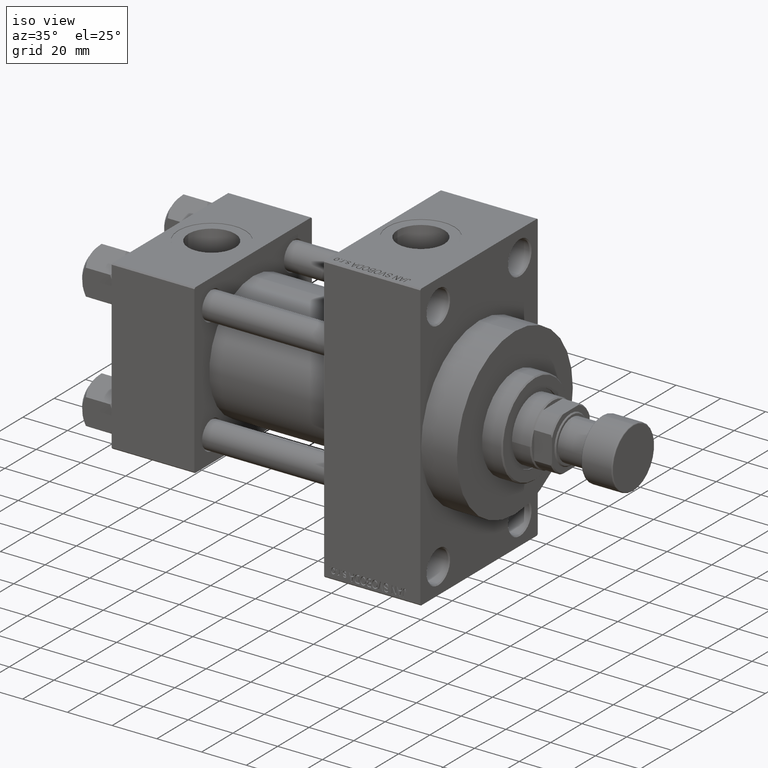
[diagram: clean part render]
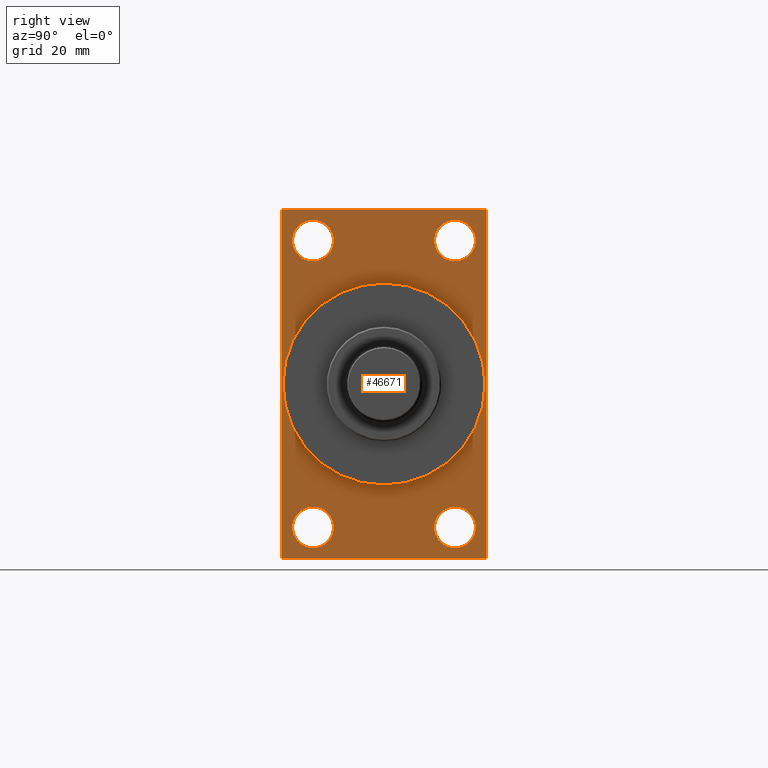
[diagram: tour spotlight — one face highlighted and labeled with its STEP entity id]
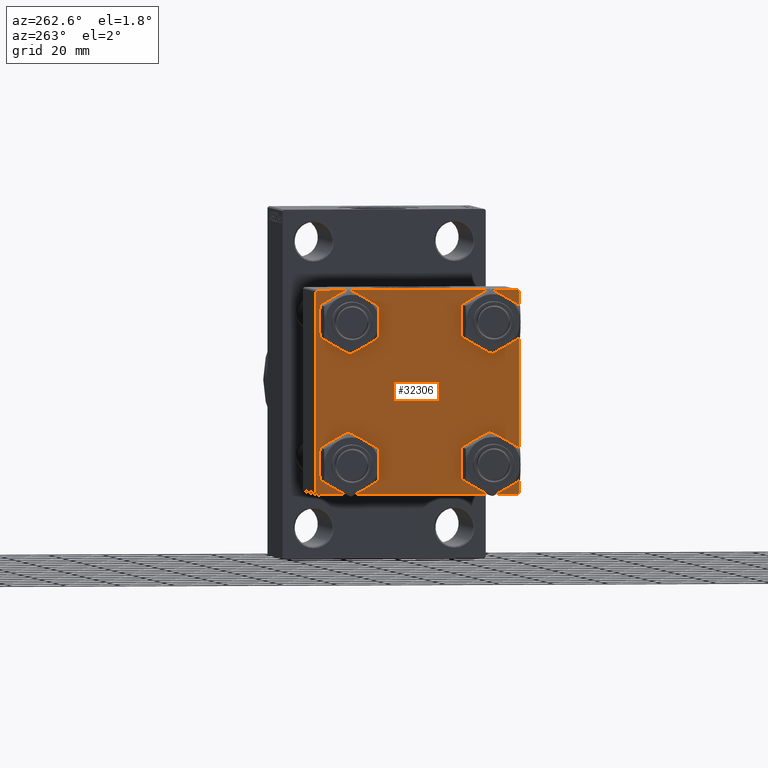
[diagram: tour spotlight — one face highlighted and labeled with its STEP entity id]
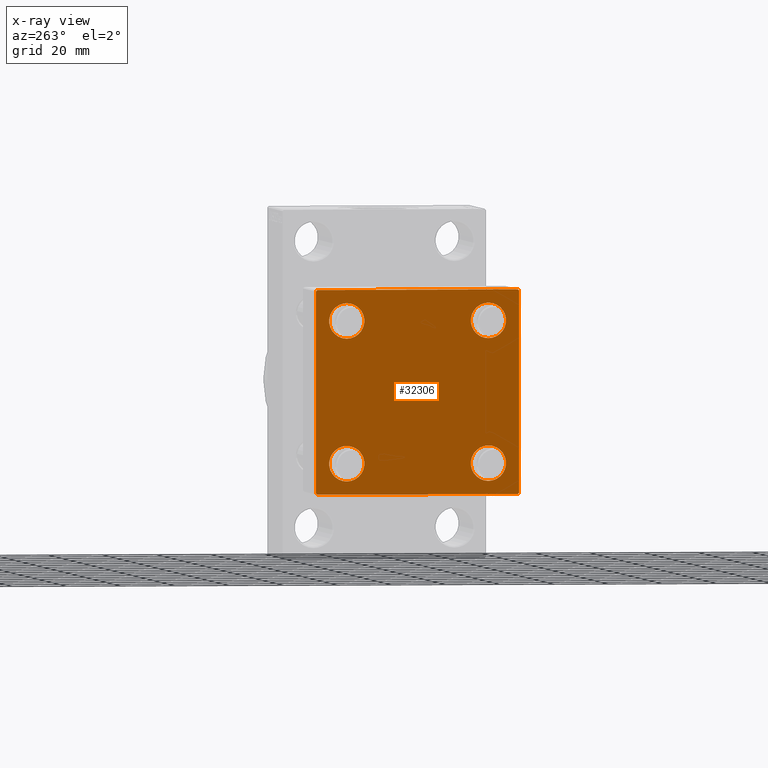
[diagram: x-ray of the same camera — body ghosted, this tour face saturated]
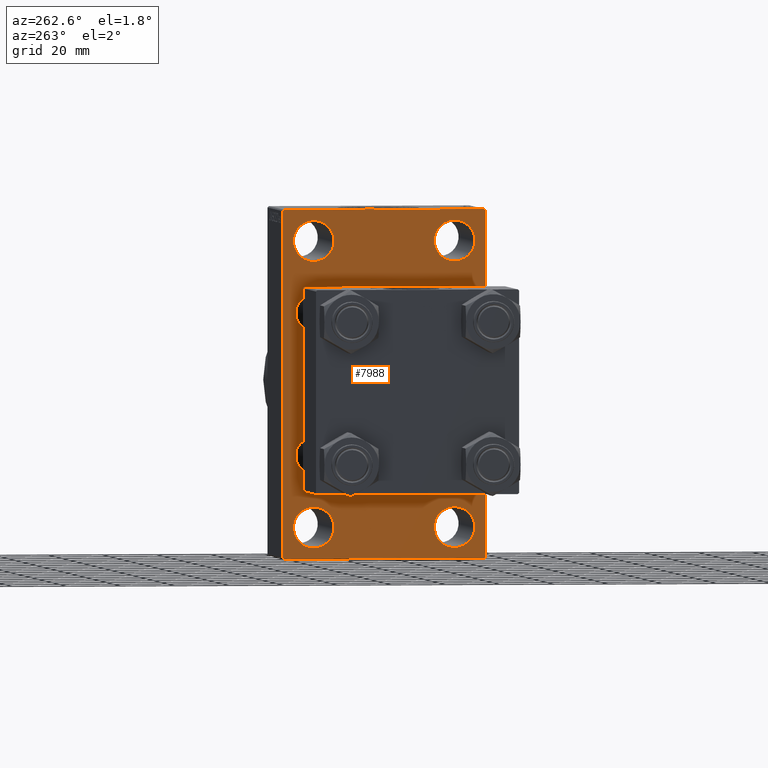
[diagram: tour spotlight — one face highlighted and labeled with its STEP entity id]
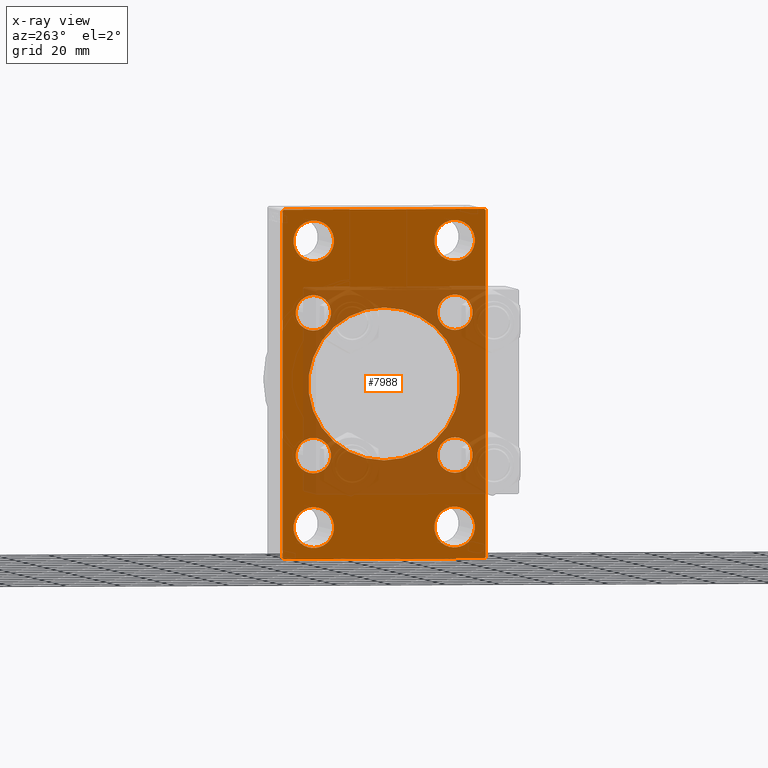
[diagram: x-ray of the same camera — body ghosted, this tour face saturated]
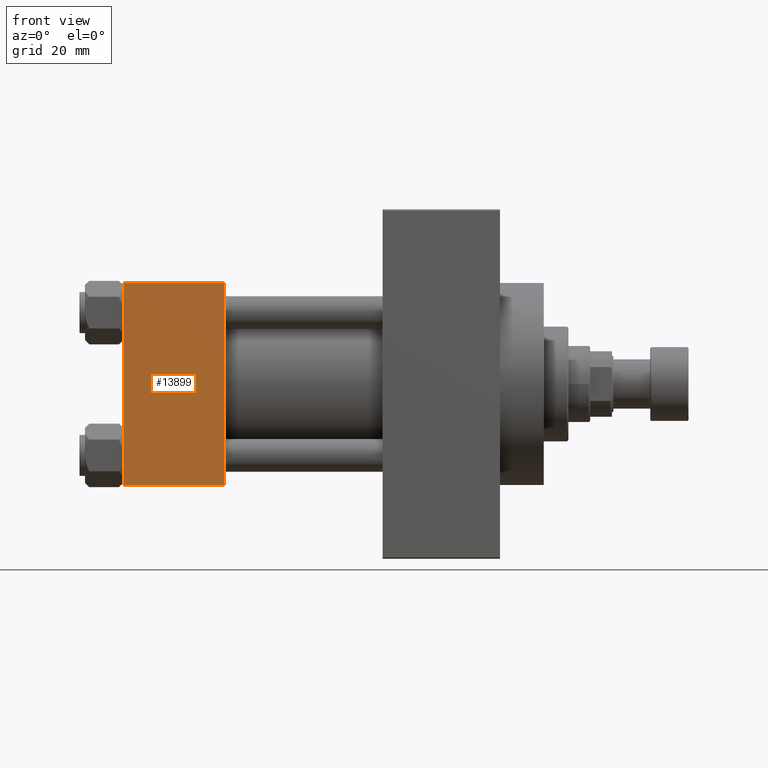
[diagram: tour spotlight — one face highlighted and labeled with its STEP entity id]
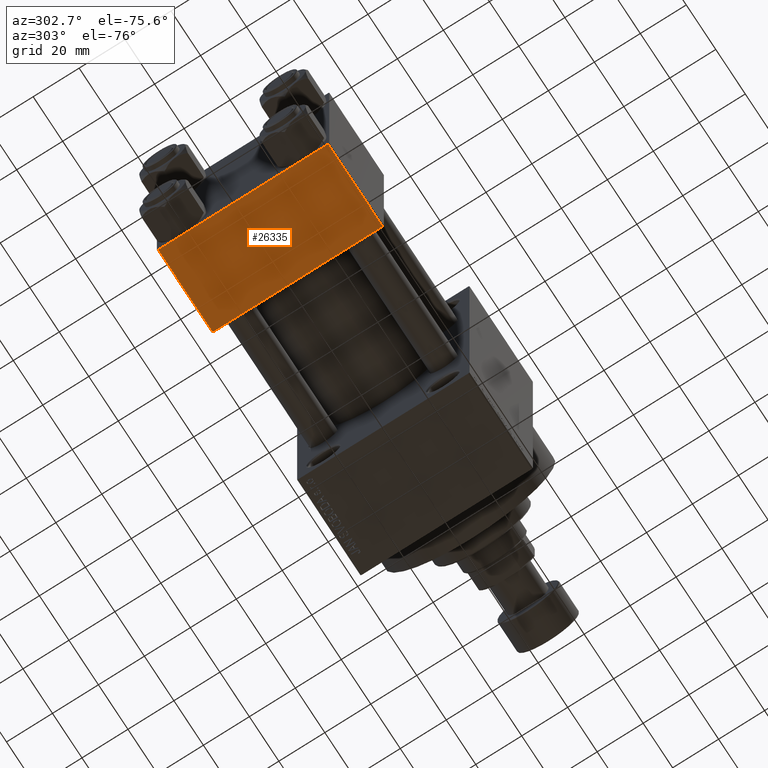
[diagram: tour spotlight — one face highlighted and labeled with its STEP entity id]
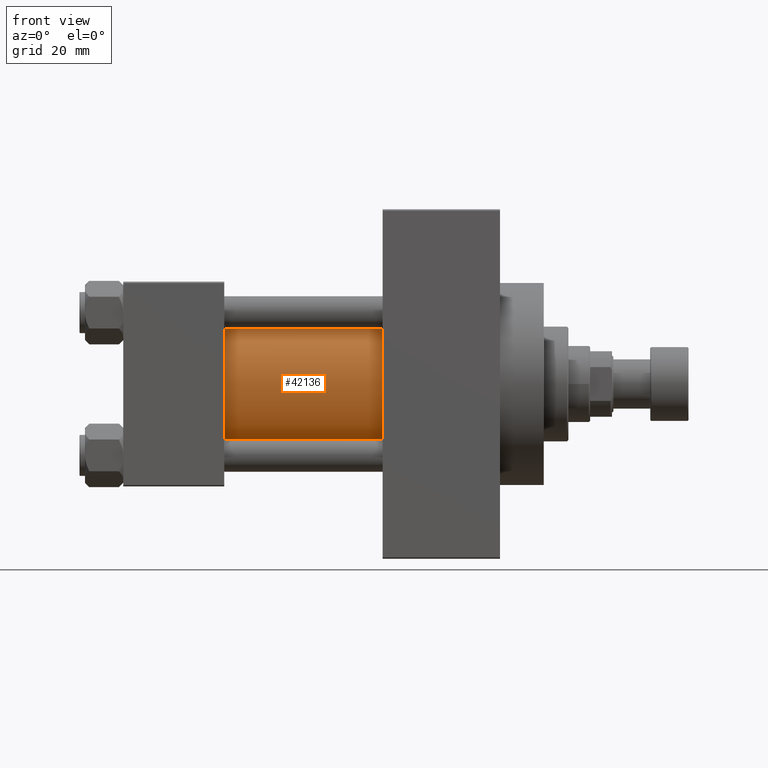
[diagram: tour spotlight — one face highlighted and labeled with its STEP entity id]
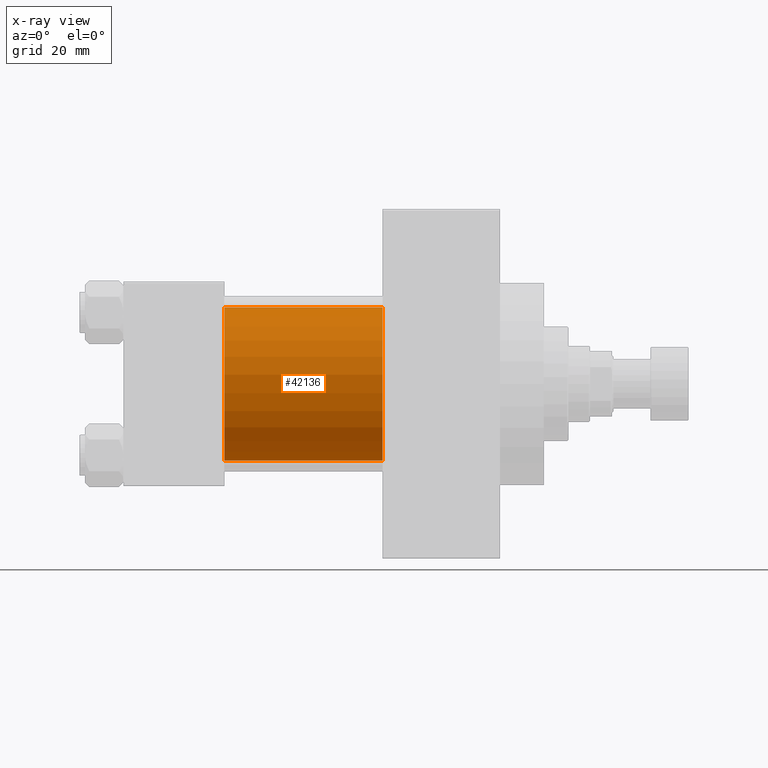
[diagram: x-ray of the same camera — body ghosted, this tour face saturated]
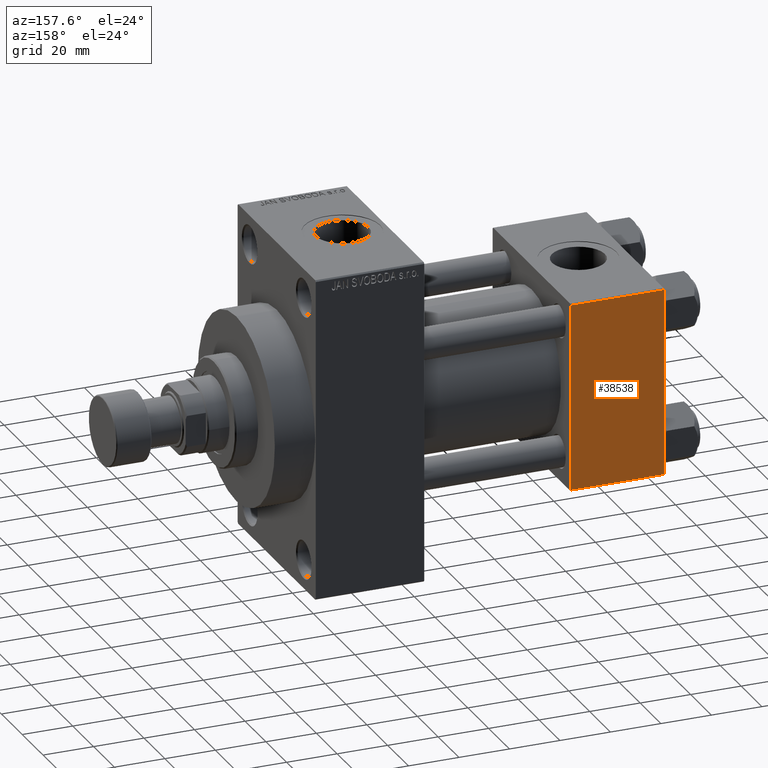
[diagram: tour spotlight — one face highlighted and labeled with its STEP entity id]
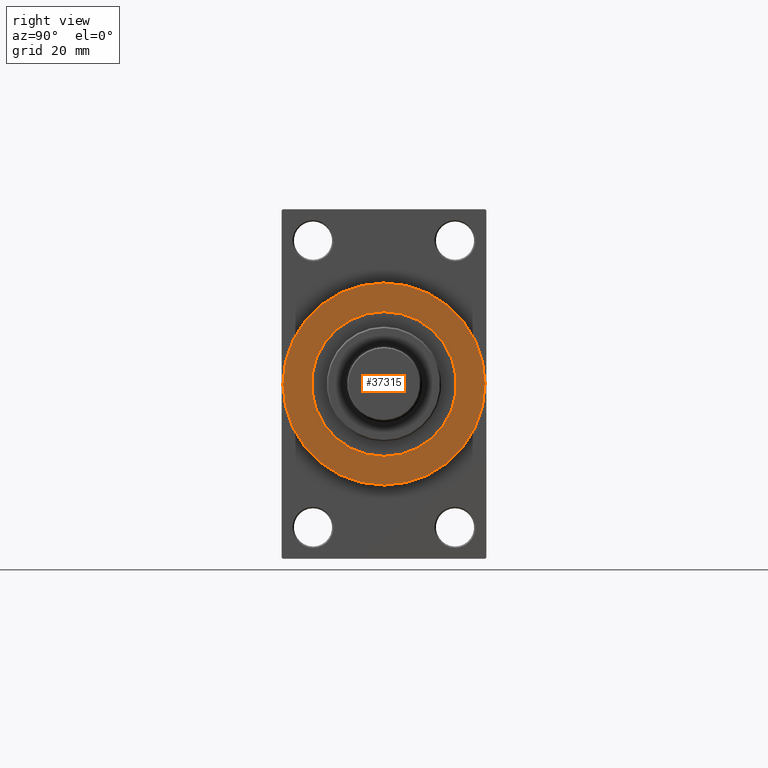
[diagram: tour spotlight — one face highlighted and labeled with its STEP entity id]
A machine part: a face-by-face anatomy tour. The part has 1117 B-rep faces; the first image is the clean iso view, then the 8 largest visible faces are spotlighted one at a time (largest first), each with its STEP entity span.

Face 1 — right view, entity #46671. In plain terms, the highlighted planar face has unit normal (-1, 0, 0).
Definition (entity closure, byte-faithful):
#253 = LINE ( 'NONE', #14952, #46655 ) ;
#262 = CIRCLE ( 'NONE', #45637, 7.500000000000007105 ) ;
#272 = VERTEX_POINT ( 'NONE', #33074 ) ;
#743 = ORIENTED_EDGE ( 'NONE', *, *, #4531, .T. ) ;
#1633 = LINE ( 'NONE', #10719, #17670 ) ;
#1659 = DIRECTION ( 'NONE',  ( -0.000000000000000000, -0.7071067811865524577, -0.7071067811865426878 ) ) ;
#1887 = EDGE_CURVE ( 'NONE', #272, #12256, #46465, .T. ) ;
#2857 = EDGE_CURVE ( 'NONE', #6541, #11925, #13396, .T. ) ;
#3149 = DIRECTION ( 'NONE',  ( -1.000000000000000000, 0.000000000000000000, -0.000000000000000000 ) ) ;
#3167 = VERTEX_POINT ( 'NONE', #27165 ) ;
#3223 = AXIS2_PLACEMENT_3D ( 'NONE', #4141, #40040, #21738 ) ;
#3701 = DIRECTION ( 'NONE',  ( 0.000000000000000000, 0.000000000000000000, 1.000000000000000000 ) ) ;
#4141 = CARTESIAN_POINT ( 'NONE',  ( 138.0000000000000000, -25.99999999999999645, -52.49999999999999289 ) ) ;
#4284 = DIRECTION ( 'NONE',  ( 0.000000000000000000, 0.000000000000000000, 1.000000000000000000 ) ) ;
#4531 = EDGE_CURVE ( 'NONE', #40634, #15219, #32609, .T. ) ;
#4826 = DIRECTION ( 'NONE',  ( -1.000000000000000000, 0.000000000000000000, -0.000000000000000000 ) ) ;
#5964 = EDGE_CURVE ( 'NONE', #16977, #13987, #16496, .T. ) ;
#6211 = DIRECTION ( 'NONE',  ( 0.000000000000000000, 0.7071067811865574537, -0.7071067811865376918 ) ) ;
#6438 = VECTOR ( 'NONE', #27757, 1000.000000000000000 ) ;
#6541 = VERTEX_POINT ( 'NONE', #28409 ) ;
#6762 = ORIENTED_EDGE ( 'NONE', *, *, #11226, .T. ) ;
#8180 = CARTESIAN_POINT ( 'NONE',  ( 138.0000000000000000, 36.99999999999999289, -64.00000000000000000 ) ) ;
#8699 = CARTESIAN_POINT ( 'NONE',  ( 138.0000000000000000, -37.49999999999999289, 63.49999999999994316 ) ) ;
#8905 = DIRECTION ( 'NONE',  ( -0.000000000000000000, 0.7071067811865573427, 0.7071067811865378028 ) ) ;
#9110 = VERTEX_POINT ( 'NONE', #44457 ) ;
#9538 = AXIS2_PLACEMENT_3D ( 'NONE', #23551, #16293, #24000 ) ;
#9826 = LINE ( 'NONE', #13207, #10250 ) ;
#10250 = VECTOR ( 'NONE', #6211, 999.9999999999998863 ) ;
#10719 = CARTESIAN_POINT ( 'NONE',  ( 138.0000000000000000, 36.99999999999997158, 63.99999999999998579 ) ) ;
#11123 = AXIS2_PLACEMENT_3D ( 'NONE', #14226, #3149, #17826 ) ;
#11226 = EDGE_CURVE ( 'NONE', #31674, #23988, #9826, .T. ) ;
#11322 = CARTESIAN_POINT ( 'NONE',  ( 138.0000000000000000, 37.49999999999999289, -63.50000000000001421 ) ) ;
#11546 = ORIENTED_EDGE ( 'NONE', *, *, #11790, .F. ) ;
#11561 = FACE_OUTER_BOUND ( 'NONE', #43782, .T. ) ;
#11654 = EDGE_LOOP ( 'NONE', ( #21501, #13477 ) ) ;
#11790 = EDGE_CURVE ( 'NONE', #31858, #9110, #42538, .T. ) ;
#11925 = VERTEX_POINT ( 'NONE', #43193 ) ;
#11981 = AXIS2_PLACEMENT_3D ( 'NONE', #40858, #22813, #29564 ) ;
#11989 = EDGE_CURVE ( 'NONE', #15219, #40634, #39480, .T. ) ;
#12256 = VERTEX_POINT ( 'NONE', #21702 ) ;
#12337 = VECTOR ( 'NONE', #42580, 1000.000000000000000 ) ;
#12468 = EDGE_CURVE ( 'NONE', #3167, #37838, #31955, .T. ) ;
#12480 = CIRCLE ( 'NONE', #3223, 7.500000000000007105 ) ;
#12572 = LINE ( 'NONE', #23192, #14527 ) ;
#13141 = EDGE_CURVE ( 'NONE', #22619, #15554, #24610, .T. ) ;
#13207 = CARTESIAN_POINT ( 'NONE',  ( 138.0000000000000000, -36.99999999999993605, -64.00000000000001421 ) ) ;
#13275 = CARTESIAN_POINT ( 'NONE',  ( 138.0000000000000000, 37.50000000000000000, 63.99999999999998579 ) ) ;
#13396 = CIRCLE ( 'NONE', #11123, 7.500000000000007105 ) ;
#13477 = ORIENTED_EDGE ( 'NONE', *, *, #40931, .T. ) ;
#13689 = VECTOR ( 'NONE', #8905, 1000.000000000000000 ) ;
#13987 = VERTEX_POINT ( 'NONE', #26720 ) ;
#14226 = CARTESIAN_POINT ( 'NONE',  ( 138.0000000000000000, -25.99999999999999645, 52.50000000000000000 ) ) ;
#14527 = VECTOR ( 'NONE', #16410, 1000.000000000000000 ) ;
#14952 = CARTESIAN_POINT ( 'NONE',  ( 138.0000000000000000, -37.49999999999999289, 63.99999999999997158 ) ) ;
#15219 = VERTEX_POINT ( 'NONE', #21064 ) ;
#15399 = DIRECTION ( 'NONE',  ( -1.000000000000000000, 0.000000000000000000, -0.000000000000000000 ) ) ;
#15554 = VERTEX_POINT ( 'NONE', #11322 ) ;
#15737 = CARTESIAN_POINT ( 'NONE',  ( 138.0000000000000000, 26.00000000000000000, 52.49999999999999289 ) ) ;
#16293 = DIRECTION ( 'NONE',  ( -1.000000000000000000, 0.000000000000000000, -0.000000000000000000 ) ) ;
#16410 = DIRECTION ( 'NONE',  ( 0.000000000000000000, -1.000000000000000000, -1.850371707708594563E-16 ) ) ;
#16496 = CIRCLE ( 'NONE', #9538, 7.500000000000007105 ) ;
#16859 = ORIENTED_EDGE ( 'NONE', *, *, #12468, .T. ) ;
#16977 = VERTEX_POINT ( 'NONE', #41365 ) ;
#17027 = DIRECTION ( 'NONE',  ( 0.000000000000000000, -0.7071067811865672237, 0.7071067811865279218 ) ) ;
#17487 = LINE ( 'NONE', #39397, #13689 ) ;
#17559 = ORIENTED_EDGE ( 'NONE', *, *, #2857, .T. ) ;
#17670 = VECTOR ( 'NONE', #17027, 1000.000000000000000 ) ;
#17826 = DIRECTION ( 'NONE',  ( 0.000000000000000000, 0.000000000000000000, 1.000000000000000000 ) ) ;
#17922 = CARTESIAN_POINT ( 'NONE',  ( 138.0000000000000000, -36.99999999999993605, -64.00000000000001421 ) ) ;
#18303 = FACE_BOUND ( 'NONE', #11654, .T. ) ;
#18774 = FACE_BOUND ( 'NONE', #21385, .T. ) ;
#19013 = FACE_BOUND ( 'NONE', #39875, .T. ) ;
#20565 = CARTESIAN_POINT ( 'NONE',  ( 138.0000000000000000, 0.000000000000000000, 0.000000000000000000 ) ) ;
#21064 = CARTESIAN_POINT ( 'NONE',  ( 138.0000000000000000, 26.00000000000000000, -60.00000000000000000 ) ) ;
#21138 = AXIS2_PLACEMENT_3D ( 'NONE', #37327, #15399, #26034 ) ;
#21385 = EDGE_LOOP ( 'NONE', ( #31742, #46425 ) ) ;
#21501 = ORIENTED_EDGE ( 'NONE', *, *, #1887, .T. ) ;
#21702 = CARTESIAN_POINT ( 'NONE',  ( 138.0000000000000000, 26.00000000000000000, 60.00000000000000000 ) ) ;
#21738 = DIRECTION ( 'NONE',  ( 0.000000000000000000, 0.000000000000000000, 1.000000000000000000 ) ) ;
#22015 = CARTESIAN_POINT ( 'NONE',  ( 138.0000000000000000, 26.00000000000000000, -52.49999999999999289 ) ) ;
#22296 = EDGE_CURVE ( 'NONE', #37838, #31674, #253, .T. ) ;
#22619 = VERTEX_POINT ( 'NONE', #43326 ) ;
#22671 = DIRECTION ( 'NONE',  ( 0.000000000000000000, 0.000000000000000000, -1.000000000000000000 ) ) ;
#22813 = DIRECTION ( 'NONE',  ( 1.000000000000000000, 0.000000000000000000, 0.000000000000000000 ) ) ;
#23192 = CARTESIAN_POINT ( 'NONE',  ( 138.0000000000000000, 37.49999999999999289, -64.00000000000000000 ) ) ;
#23387 = VECTOR ( 'NONE', #1659, 1000.000000000000000 ) ;
#23551 = CARTESIAN_POINT ( 'NONE',  ( 138.0000000000000000, -25.99999999999999645, -52.49999999999999289 ) ) ;
#23988 = VERTEX_POINT ( 'NONE', #17922 ) ;
#24000 = DIRECTION ( 'NONE',  ( 0.000000000000000000, 0.000000000000000000, 1.000000000000000000 ) ) ;
#24097 = ORIENTED_EDGE ( 'NONE', *, *, #27844, .F. ) ;
#24610 = LINE ( 'NONE', #13275, #6438 ) ;
#24795 = ORIENTED_EDGE ( 'NONE', *, *, #34655, .T. ) ;
#24885 = CIRCLE ( 'NONE', #44157, 7.500000000000007105 ) ;
#25540 = ORIENTED_EDGE ( 'NONE', *, *, #39180, .T. ) ;
#25711 = AXIS2_PLACEMENT_3D ( 'NONE', #44752, #37277, #4284 ) ;
#26034 = DIRECTION ( 'NONE',  ( -0.000000000000000000, 0.000000000000000000, 1.000000000000000000 ) ) ;
#26114 = EDGE_CURVE ( 'NONE', #44122, #15554, #17487, .T. ) ;
#26720 = CARTESIAN_POINT ( 'NONE',  ( 138.0000000000000000, -25.99999999999999645, -60.00000000000000000 ) ) ;
#26821 = DIRECTION ( 'NONE',  ( 0.000000000000000000, 0.000000000000000000, 1.000000000000000000 ) ) ;
#27165 = CARTESIAN_POINT ( 'NONE',  ( 138.0000000000000000, -36.99999999999995737, 63.99999999999997158 ) ) ;
#27757 = DIRECTION ( 'NONE',  ( 0.000000000000000000, -5.421010862427522170E-17, -1.000000000000000000 ) ) ;
#27844 = EDGE_CURVE ( 'NONE', #44122, #23988, #12572, .T. ) ;
#27960 = CARTESIAN_POINT ( 'NONE',  ( 138.0000000000000000, 36.99999999999997158, 63.99999999999998579 ) ) ;
#28191 = ORIENTED_EDGE ( 'NONE', *, *, #44914, .F. ) ;
#28409 = CARTESIAN_POINT ( 'NONE',  ( 138.0000000000000000, -25.99999999999999645, 60.00000000000000711 ) ) ;
#29406 = FACE_BOUND ( 'NONE', #46594, .T. ) ;
#29564 = DIRECTION ( 'NONE',  ( 0.000000000000000000, 0.000000000000000000, -1.000000000000000000 ) ) ;
#29835 = CARTESIAN_POINT ( 'NONE',  ( 138.0000000000000000, 0.000000000000000000, 37.00000000000000000 ) ) ;
#30390 = DIRECTION ( 'NONE',  ( 0.000000000000000000, 0.000000000000000000, 1.000000000000000000 ) ) ;
#30786 = EDGE_CURVE ( 'NONE', #43973, #3167, #38496, .T. ) ;
#31089 = ORIENTED_EDGE ( 'NONE', *, *, #22296, .T. ) ;
#31674 = VERTEX_POINT ( 'NONE', #42829 ) ;
#31742 = ORIENTED_EDGE ( 'NONE', *, *, #36709, .T. ) ;
#31799 = AXIS2_PLACEMENT_3D ( 'NONE', #20565, #45888, #38404 ) ;
#31858 = VERTEX_POINT ( 'NONE', #29835 ) ;
#31955 = LINE ( 'NONE', #45532, #23387 ) ;
#32609 = CIRCLE ( 'NONE', #40305, 7.500000000000007105 ) ;
#33013 = FACE_BOUND ( 'NONE', #45482, .T. ) ;
#33074 = CARTESIAN_POINT ( 'NONE',  ( 138.0000000000000000, 26.00000000000000000, 44.99999999999998579 ) ) ;
#33242 = PLANE ( 'NONE',  #21138 ) ;
#33461 = ORIENTED_EDGE ( 'NONE', *, *, #30786, .T. ) ;
#33828 = DIRECTION ( 'NONE',  ( 0.000000000000000000, 0.000000000000000000, 1.000000000000000000 ) ) ;
#34655 = EDGE_CURVE ( 'NONE', #22619, #43973, #1633, .T. ) ;
#34665 = CARTESIAN_POINT ( 'NONE',  ( 138.0000000000000000, 37.50000000000000000, 63.99999999999998579 ) ) ;
#36702 = DIRECTION ( 'NONE',  ( -1.000000000000000000, 0.000000000000000000, -0.000000000000000000 ) ) ;
#36709 = EDGE_CURVE ( 'NONE', #13987, #16977, #12480, .T. ) ;
#37196 = AXIS2_PLACEMENT_3D ( 'NONE', #22015, #36702, #3701 ) ;
#37277 = DIRECTION ( 'NONE',  ( -1.000000000000000000, 0.000000000000000000, -0.000000000000000000 ) ) ;
#37327 = CARTESIAN_POINT ( 'NONE',  ( 138.0000000000000000, 0.000000000000000000, 0.000000000000000000 ) ) ;
#37650 = CARTESIAN_POINT ( 'NONE',  ( 138.0000000000000000, -25.99999999999999645, 52.50000000000000000 ) ) ;
#37838 = VERTEX_POINT ( 'NONE', #8699 ) ;
#38136 = CIRCLE ( 'NONE', #11981, 37.00000000000000000 ) ;
#38404 = DIRECTION ( 'NONE',  ( 0.000000000000000000, 0.000000000000000000, -1.000000000000000000 ) ) ;
#38496 = LINE ( 'NONE', #34665, #12337 ) ;
#39180 = EDGE_CURVE ( 'NONE', #11925, #6541, #262, .T. ) ;
#39397 = CARTESIAN_POINT ( 'NONE',  ( 138.0000000000000000, 37.49999999999999289, -63.50000000000001421 ) ) ;
#39480 = CIRCLE ( 'NONE', #37196, 7.500000000000007105 ) ;
#39875 = EDGE_LOOP ( 'NONE', ( #40936, #743 ) ) ;
#40040 = DIRECTION ( 'NONE',  ( -1.000000000000000000, 0.000000000000000000, -0.000000000000000000 ) ) ;
#40305 = AXIS2_PLACEMENT_3D ( 'NONE', #45317, #4826, #30390 ) ;
#40634 = VERTEX_POINT ( 'NONE', #44954 ) ;
#40858 = CARTESIAN_POINT ( 'NONE',  ( 138.0000000000000000, 0.000000000000000000, 0.000000000000000000 ) ) ;
#40931 = EDGE_CURVE ( 'NONE', #12256, #272, #24885, .T. ) ;
#40936 = ORIENTED_EDGE ( 'NONE', *, *, #11989, .T. ) ;
#41365 = CARTESIAN_POINT ( 'NONE',  ( 138.0000000000000000, -25.99999999999999645, -44.99999999999998579 ) ) ;
#42198 = DIRECTION ( 'NONE',  ( -1.000000000000000000, 0.000000000000000000, -0.000000000000000000 ) ) ;
#42538 = CIRCLE ( 'NONE', #31799, 37.00000000000000000 ) ;
#42580 = DIRECTION ( 'NONE',  ( 0.000000000000000000, -1.000000000000000000, -1.850371707708594563E-16 ) ) ;
#42829 = CARTESIAN_POINT ( 'NONE',  ( 138.0000000000000000, -37.49999999999999289, -63.49999999999997158 ) ) ;
#43193 = CARTESIAN_POINT ( 'NONE',  ( 138.0000000000000000, -25.99999999999999645, 44.99999999999999289 ) ) ;
#43326 = CARTESIAN_POINT ( 'NONE',  ( 138.0000000000000000, 37.50000000000000000, 63.49999999999998579 ) ) ;
#43782 = EDGE_LOOP ( 'NONE', ( #31089, #6762, #24097, #47503, #43905, #24795, #33461, #16859 ) ) ;
#43905 = ORIENTED_EDGE ( 'NONE', *, *, #13141, .F. ) ;
#43973 = VERTEX_POINT ( 'NONE', #27960 ) ;
#44122 = VERTEX_POINT ( 'NONE', #8180 ) ;
#44157 = AXIS2_PLACEMENT_3D ( 'NONE', #15737, #45146, #33828 ) ;
#44457 = CARTESIAN_POINT ( 'NONE',  ( 138.0000000000000000, 4.531193156845206793E-15, -37.00000000000000000 ) ) ;
#44752 = CARTESIAN_POINT ( 'NONE',  ( 138.0000000000000000, 26.00000000000000000, 52.49999999999999289 ) ) ;
#44914 = EDGE_CURVE ( 'NONE', #9110, #31858, #38136, .T. ) ;
#44954 = CARTESIAN_POINT ( 'NONE',  ( 138.0000000000000000, 26.00000000000000000, -44.99999999999998579 ) ) ;
#45146 = DIRECTION ( 'NONE',  ( -1.000000000000000000, 0.000000000000000000, -0.000000000000000000 ) ) ;
#45317 = CARTESIAN_POINT ( 'NONE',  ( 138.0000000000000000, 26.00000000000000000, -52.49999999999999289 ) ) ;
#45482 = EDGE_LOOP ( 'NONE', ( #25540, #17559 ) ) ;
#45532 = CARTESIAN_POINT ( 'NONE',  ( 138.0000000000000000, -37.49999999999999289, 63.49999999999994316 ) ) ;
#45637 = AXIS2_PLACEMENT_3D ( 'NONE', #37650, #42198, #26821 ) ;
#45888 = DIRECTION ( 'NONE',  ( 1.000000000000000000, 0.000000000000000000, 0.000000000000000000 ) ) ;
#46425 = ORIENTED_EDGE ( 'NONE', *, *, #5964, .T. ) ;
#46465 = CIRCLE ( 'NONE', #25711, 7.500000000000007105 ) ;
#46594 = EDGE_LOOP ( 'NONE', ( #11546, #28191 ) ) ;
#46655 = VECTOR ( 'NONE', #22671, 1000.000000000000000 ) ;
#46671 = ADVANCED_FACE ( 'NONE', ( #33013, #18774, #19013, #18303, #29406, #11561 ), #33242, .F. ) ;
#47503 = ORIENTED_EDGE ( 'NONE', *, *, #26114, .T. ) ;

Face 2 — auxiliary view, entity #32306. An x-ray twin of the same camera follows (body ghosted, this face saturated) — the face is partly hidden behind the body. In plain terms, the highlighted planar face has unit normal (-1, 0, 0).
Definition (entity closure, byte-faithful):
#339 = CIRCLE ( 'NONE', #12652, 6.500000000000023093 ) ;
#616 = CARTESIAN_POINT ( 'NONE',  ( 0.000000000000000000, -26.14999999999999147, 26.15000000000000924 ) ) ;
#1073 = AXIS2_PLACEMENT_3D ( 'NONE', #30606, #26985, #16585 ) ;
#1666 = EDGE_CURVE ( 'NONE', #36276, #22203, #33967, .T. ) ;
#1708 = EDGE_CURVE ( 'NONE', #15370, #8399, #21851, .T. ) ;
#2302 = EDGE_LOOP ( 'NONE', ( #18036, #17310, #40925, #47101, #9142, #14391, #15749, #37687 ) ) ;
#2485 = CARTESIAN_POINT ( 'NONE',  ( 0.000000000000000000, -26.14999999999999147, -19.64999999999999503 ) ) ;
#2606 = VECTOR ( 'NONE', #41417, 1000.000000000000114 ) ;
#2740 = CIRCLE ( 'NONE', #25072, 6.500000000000015987 ) ;
#2768 = EDGE_CURVE ( 'NONE', #45755, #15735, #6378, .T. ) ;
#2833 = EDGE_LOOP ( 'NONE', ( #27078, #45165 ) ) ;
#2835 = DIRECTION ( 'NONE',  ( 0.000000000000000000, 9.251858538542971581E-17, -1.000000000000000000 ) ) ;
#3385 = VERTEX_POINT ( 'NONE', #41263 ) ;
#3451 = PLANE ( 'NONE',  #39929 ) ;
#3708 = AXIS2_PLACEMENT_3D ( 'NONE', #616, #7610, #33384 ) ;
#4266 = VERTEX_POINT ( 'NONE', #8324 ) ;
#4461 = EDGE_CURVE ( 'NONE', #17161, #26255, #27012, .T. ) ;
#4613 = ORIENTED_EDGE ( 'NONE', *, *, #1708, .T. ) ;
#4890 = CARTESIAN_POINT ( 'NONE',  ( 0.000000000000000000, -26.14999999999999147, 32.65000000000003411 ) ) ;
#5045 = VERTEX_POINT ( 'NONE', #16785 ) ;
#5356 = DIRECTION ( 'NONE',  ( 0.000000000000000000, -1.000000000000000000, -9.251858538542972814E-17 ) ) ;
#6378 = CIRCLE ( 'NONE', #28035, 6.500000000000015987 ) ;
#6435 = CARTESIAN_POINT ( 'NONE',  ( 0.000000000000000000, -37.50000000000000711, 37.49999999999999289 ) ) ;
#7223 = VECTOR ( 'NONE', #29270, 1000.000000000000000 ) ;
#7348 = EDGE_LOOP ( 'NONE', ( #30795, #4613 ) ) ;
#7610 = DIRECTION ( 'NONE',  ( 1.000000000000000000, -0.000000000000000000, 0.000000000000000000 ) ) ;
#7771 = FACE_BOUND ( 'NONE', #2833, .T. ) ;
#8003 = FACE_BOUND ( 'NONE', #27088, .T. ) ;
#8324 = CARTESIAN_POINT ( 'NONE',  ( 0.000000000000000000, -37.50000000000000000, -37.00000000000003553 ) ) ;
#8399 = VERTEX_POINT ( 'NONE', #46103 ) ;
#8472 = VECTOR ( 'NONE', #11372, 1000.000000000000114 ) ;
#8515 = DIRECTION ( 'NONE',  ( 0.000000000000000000, 0.000000000000000000, 1.000000000000000000 ) ) ;
#8706 = CARTESIAN_POINT ( 'NONE',  ( 0.000000000000000000, -26.14999999999999147, -26.15000000000000924 ) ) ;
#9142 = ORIENTED_EDGE ( 'NONE', *, *, #30888, .F. ) ;
#9377 = DIRECTION ( 'NONE',  ( 0.000000000000000000, 0.000000000000000000, 1.000000000000000000 ) ) ;
#10183 = CARTESIAN_POINT ( 'NONE',  ( 0.000000000000000000, 37.49999999999999289, 37.50000000000000000 ) ) ;
#10880 = ORIENTED_EDGE ( 'NONE', *, *, #41984, .T. ) ;
#11064 = VERTEX_POINT ( 'NONE', #26392 ) ;
#11372 = DIRECTION ( 'NONE',  ( 0.000000000000000000, 0.7071067811865474617, -0.7071067811865474617 ) ) ;
#11871 = EDGE_CURVE ( 'NONE', #32214, #22203, #25390, .T. ) ;
#12270 = CARTESIAN_POINT ( 'NONE',  ( 0.000000000000000000, 37.24999999999998579, -37.24999999999998579 ) ) ;
#12652 = AXIS2_PLACEMENT_3D ( 'NONE', #27716, #42390, #9377 ) ;
#13010 = CARTESIAN_POINT ( 'NONE',  ( 0.000000000000000000, 26.14999999999999858, -26.15000000000000213 ) ) ;
#13282 = CARTESIAN_POINT ( 'NONE',  ( 0.000000000000000000, 37.49999999999999289, -37.50000000000000000 ) ) ;
#14391 = ORIENTED_EDGE ( 'NONE', *, *, #1666, .T. ) ;
#15288 = CIRCLE ( 'NONE', #17576, 6.500000000000015987 ) ;
#15370 = VERTEX_POINT ( 'NONE', #40092 ) ;
#15495 = CARTESIAN_POINT ( 'NONE',  ( 0.000000000000000000, 26.14999999999999858, 26.15000000000000213 ) ) ;
#15735 = VERTEX_POINT ( 'NONE', #46688 ) ;
#15749 = ORIENTED_EDGE ( 'NONE', *, *, #11871, .F. ) ;
#16585 = DIRECTION ( 'NONE',  ( 0.000000000000000000, 0.000000000000000000, 1.000000000000000000 ) ) ;
#16785 = CARTESIAN_POINT ( 'NONE',  ( 0.000000000000000000, -26.14999999999999147, 19.64999999999999147 ) ) ;
#16981 = ORIENTED_EDGE ( 'NONE', *, *, #2768, .T. ) ;
#17161 = VERTEX_POINT ( 'NONE', #17948 ) ;
#17310 = ORIENTED_EDGE ( 'NONE', *, *, #43284, .T. ) ;
#17322 = DIRECTION ( 'NONE',  ( 0.000000000000000000, 0.000000000000000000, 1.000000000000000000 ) ) ;
#17576 = AXIS2_PLACEMENT_3D ( 'NONE', #39327, #35740, #31647 ) ;
#17647 = EDGE_CURVE ( 'NONE', #18419, #3385, #31251, .T. ) ;
#17948 = CARTESIAN_POINT ( 'NONE',  ( 0.000000000000000000, 37.49999999999999289, 37.00000000000000000 ) ) ;
#18036 = ORIENTED_EDGE ( 'NONE', *, *, #4461, .T. ) ;
#18138 = VECTOR ( 'NONE', #27257, 1000.000000000000000 ) ;
#18419 = VERTEX_POINT ( 'NONE', #2485 ) ;
#19491 = CARTESIAN_POINT ( 'NONE',  ( -0.000000000000000000, -37.25000000000000000, 37.25000000000000000 ) ) ;
#20255 = CARTESIAN_POINT ( 'NONE',  ( 0.000000000000000000, 26.14999999999999858, -26.15000000000000213 ) ) ;
#20908 = DIRECTION ( 'NONE',  ( 0.000000000000000000, 0.000000000000000000, 1.000000000000000000 ) ) ;
#21077 = EDGE_CURVE ( 'NONE', #11064, #4266, #46037, .T. ) ;
#21238 = AXIS2_PLACEMENT_3D ( 'NONE', #8706, #27915, #20908 ) ;
#21851 = CIRCLE ( 'NONE', #1073, 6.500000000000023093 ) ;
#22203 = VERTEX_POINT ( 'NONE', #35691 ) ;
#22235 = FACE_BOUND ( 'NONE', #28317, .T. ) ;
#24756 = LINE ( 'NONE', #6435, #40801 ) ;
#25072 = AXIS2_PLACEMENT_3D ( 'NONE', #13010, #39471, #17322 ) ;
#25390 = LINE ( 'NONE', #10183, #35647 ) ;
#25554 = EDGE_CURVE ( 'NONE', #5045, #33052, #39831, .T. ) ;
#26255 = VERTEX_POINT ( 'NONE', #42490 ) ;
#26392 = CARTESIAN_POINT ( 'NONE',  ( 0.000000000000000000, -37.00000000000002132, -37.50000000000000711 ) ) ;
#26845 = DIRECTION ( 'NONE',  ( 1.000000000000000000, -0.000000000000000000, 0.000000000000000000 ) ) ;
#26985 = DIRECTION ( 'NONE',  ( 1.000000000000000000, -0.000000000000000000, 0.000000000000000000 ) ) ;
#27012 = LINE ( 'NONE', #30631, #7223 ) ;
#27078 = ORIENTED_EDGE ( 'NONE', *, *, #17647, .T. ) ;
#27088 = EDGE_LOOP ( 'NONE', ( #10880, #37198 ) ) ;
#27257 = DIRECTION ( 'NONE',  ( 0.000000000000000000, -0.7071067811865524577, 0.7071067811865426878 ) ) ;
#27626 = EDGE_CURVE ( 'NONE', #3385, #18419, #15288, .T. ) ;
#27716 = CARTESIAN_POINT ( 'NONE',  ( 0.000000000000000000, -26.14999999999999147, 26.15000000000000924 ) ) ;
#27896 = LINE ( 'NONE', #12270, #44268 ) ;
#27915 = DIRECTION ( 'NONE',  ( 1.000000000000000000, -0.000000000000000000, 0.000000000000000000 ) ) ;
#28035 = AXIS2_PLACEMENT_3D ( 'NONE', #20255, #34967, #31359 ) ;
#28317 = EDGE_LOOP ( 'NONE', ( #39782, #16981 ) ) ;
#29243 = FACE_BOUND ( 'NONE', #7348, .T. ) ;
#29270 = DIRECTION ( 'NONE',  ( 0.000000000000000000, 0.000000000000000000, -1.000000000000000000 ) ) ;
#29329 = CARTESIAN_POINT ( 'NONE',  ( 0.000000000000000000, 36.99999999999997868, -37.50000000000000000 ) ) ;
#29554 = CIRCLE ( 'NONE', #43348, 6.500000000000023093 ) ;
#29949 = FACE_OUTER_BOUND ( 'NONE', #2302, .T. ) ;
#30606 = CARTESIAN_POINT ( 'NONE',  ( 0.000000000000000000, 26.14999999999999858, 26.15000000000000213 ) ) ;
#30631 = CARTESIAN_POINT ( 'NONE',  ( 0.000000000000000000, 37.49999999999999289, 37.50000000000000000 ) ) ;
#30795 = ORIENTED_EDGE ( 'NONE', *, *, #40932, .T. ) ;
#30888 = EDGE_CURVE ( 'NONE', #36276, #4266, #24756, .T. ) ;
#31143 = LINE ( 'NONE', #13282, #37671 ) ;
#31251 = CIRCLE ( 'NONE', #21238, 6.500000000000015987 ) ;
#31359 = DIRECTION ( 'NONE',  ( 0.000000000000000000, 0.000000000000000000, 1.000000000000000000 ) ) ;
#31647 = DIRECTION ( 'NONE',  ( 0.000000000000000000, 0.000000000000000000, 1.000000000000000000 ) ) ;
#32214 = VERTEX_POINT ( 'NONE', #32595 ) ;
#32306 = ADVANCED_FACE ( 'NONE', ( #8003, #7771, #22235, #29243, #29949 ), #3451, .T. ) ;
#32595 = CARTESIAN_POINT ( 'NONE',  ( 0.000000000000000000, 36.99999999999999289, 37.50000000000000000 ) ) ;
#32765 = CARTESIAN_POINT ( 'NONE',  ( 0.000000000000000000, 26.14999999999999858, -32.65000000000001990 ) ) ;
#33052 = VERTEX_POINT ( 'NONE', #4890 ) ;
#33178 = EDGE_CURVE ( 'NONE', #44750, #11064, #31143, .T. ) ;
#33289 = LINE ( 'NONE', #44375, #8472 ) ;
#33384 = DIRECTION ( 'NONE',  ( 0.000000000000000000, 0.000000000000000000, 1.000000000000000000 ) ) ;
#33967 = LINE ( 'NONE', #19491, #2606 ) ;
#34215 = EDGE_CURVE ( 'NONE', #32214, #17161, #33289, .T. ) ;
#34967 = DIRECTION ( 'NONE',  ( 1.000000000000000000, -0.000000000000000000, 0.000000000000000000 ) ) ;
#35647 = VECTOR ( 'NONE', #36462, 1000.000000000000000 ) ;
#35691 = CARTESIAN_POINT ( 'NONE',  ( 0.000000000000000000, -37.00000000000000711, 37.49999999999999289 ) ) ;
#35740 = DIRECTION ( 'NONE',  ( 1.000000000000000000, -0.000000000000000000, 0.000000000000000000 ) ) ;
#36276 = VERTEX_POINT ( 'NONE', #40096 ) ;
#36462 = DIRECTION ( 'NONE',  ( 0.000000000000000000, -1.000000000000000000, -9.251858538542971581E-17 ) ) ;
#37198 = ORIENTED_EDGE ( 'NONE', *, *, #25554, .T. ) ;
#37671 = VECTOR ( 'NONE', #5356, 1000.000000000000000 ) ;
#37687 = ORIENTED_EDGE ( 'NONE', *, *, #34215, .T. ) ;
#38321 = CARTESIAN_POINT ( 'NONE',  ( 0.000000000000000000, -37.24999999999975842, -37.25000000000027001 ) ) ;
#39327 = CARTESIAN_POINT ( 'NONE',  ( 0.000000000000000000, -26.14999999999999147, -26.15000000000000924 ) ) ;
#39471 = DIRECTION ( 'NONE',  ( 1.000000000000000000, -0.000000000000000000, 0.000000000000000000 ) ) ;
#39782 = ORIENTED_EDGE ( 'NONE', *, *, #44715, .T. ) ;
#39831 = CIRCLE ( 'NONE', #3708, 6.500000000000023093 ) ;
#39929 = AXIS2_PLACEMENT_3D ( 'NONE', #40544, #47549, #44153 ) ;
#40092 = CARTESIAN_POINT ( 'NONE',  ( 0.000000000000000000, 26.14999999999999858, 19.64999999999998437 ) ) ;
#40096 = CARTESIAN_POINT ( 'NONE',  ( 0.000000000000000000, -37.50000000000000711, 36.99999999999999289 ) ) ;
#40544 = CARTESIAN_POINT ( 'NONE',  ( 0.000000000000000000, 0.000000000000000000, 0.000000000000000000 ) ) ;
#40801 = VECTOR ( 'NONE', #2835, 1000.000000000000000 ) ;
#40925 = ORIENTED_EDGE ( 'NONE', *, *, #33178, .T. ) ;
#40932 = EDGE_CURVE ( 'NONE', #8399, #15370, #29554, .T. ) ;
#41263 = CARTESIAN_POINT ( 'NONE',  ( 0.000000000000000000, -26.14999999999999147, -32.65000000000002700 ) ) ;
#41417 = DIRECTION ( 'NONE',  ( -0.000000000000000000, 0.7071067811865474617, 0.7071067811865474617 ) ) ;
#41984 = EDGE_CURVE ( 'NONE', #33052, #5045, #339, .T. ) ;
#42390 = DIRECTION ( 'NONE',  ( 1.000000000000000000, -0.000000000000000000, 0.000000000000000000 ) ) ;
#42490 = CARTESIAN_POINT ( 'NONE',  ( 0.000000000000000000, 37.49999999999999289, -36.99999999999998579 ) ) ;
#42577 = DIRECTION ( 'NONE',  ( -0.000000000000000000, -0.7071067811865474617, -0.7071067811865474617 ) ) ;
#43284 = EDGE_CURVE ( 'NONE', #26255, #44750, #27896, .T. ) ;
#43348 = AXIS2_PLACEMENT_3D ( 'NONE', #15495, #26845, #8515 ) ;
#44153 = DIRECTION ( 'NONE',  ( -0.000000000000000000, 0.000000000000000000, 1.000000000000000000 ) ) ;
#44268 = VECTOR ( 'NONE', #42577, 1000.000000000000114 ) ;
#44375 = CARTESIAN_POINT ( 'NONE',  ( 0.000000000000000000, 37.24999999999999289, 37.24999999999999289 ) ) ;
#44715 = EDGE_CURVE ( 'NONE', #15735, #45755, #2740, .T. ) ;
#44750 = VERTEX_POINT ( 'NONE', #29329 ) ;
#45165 = ORIENTED_EDGE ( 'NONE', *, *, #27626, .T. ) ;
#45755 = VERTEX_POINT ( 'NONE', #32765 ) ;
#46037 = LINE ( 'NONE', #38321, #18138 ) ;
#46103 = CARTESIAN_POINT ( 'NONE',  ( 0.000000000000000000, 26.14999999999999858, 32.65000000000002700 ) ) ;
#46688 = CARTESIAN_POINT ( 'NONE',  ( 0.000000000000000000, 26.14999999999999858, -19.64999999999998792 ) ) ;
#47101 = ORIENTED_EDGE ( 'NONE', *, *, #21077, .T. ) ;
#47549 = DIRECTION ( 'NONE',  ( -1.000000000000000000, 0.000000000000000000, -0.000000000000000000 ) ) ;

Face 3 — auxiliary view, entity #7988. An x-ray twin of the same camera follows (body ghosted, this face saturated) — the face is partly hidden behind the body. In plain terms, the highlighted planar face has unit normal (-1, 0, 0).
Definition (entity closure, byte-faithful):
#64 = LINE ( 'NONE', #3925, #39126 ) ;
#394 = CARTESIAN_POINT ( 'NONE',  ( 95.00000000000000000, -25.99999999999999645, 45.00000000000002132 ) ) ;
#421 = AXIS2_PLACEMENT_3D ( 'NONE', #42771, #20844, #14086 ) ;
#546 = CARTESIAN_POINT ( 'NONE',  ( 95.00000000000000000, 26.14999999999999858, -19.64999999999999503 ) ) ;
#753 = ORIENTED_EDGE ( 'NONE', *, *, #31111, .T. ) ;
#829 = DIRECTION ( 'NONE',  ( 0.000000000000000000, 0.000000000000000000, -1.000000000000000000 ) ) ;
#906 = EDGE_CURVE ( 'NONE', #39905, #32947, #33374, .T. ) ;
#976 = CARTESIAN_POINT ( 'NONE',  ( 95.00000000000000000, 26.14999999999999858, 32.65000000000001990 ) ) ;
#1239 = AXIS2_PLACEMENT_3D ( 'NONE', #30641, #12542, #9159 ) ;
#1589 = CARTESIAN_POINT ( 'NONE',  ( 95.00000000000000000, 26.00000000000000000, 52.49999999999999289 ) ) ;
#2125 = DIRECTION ( 'NONE',  ( 1.000000000000000000, -0.000000000000000000, 0.000000000000000000 ) ) ;
#2340 = DIRECTION ( 'NONE',  ( 0.000000000000000000, 0.000000000000000000, 1.000000000000000000 ) ) ;
#2769 = CARTESIAN_POINT ( 'NONE',  ( 95.00000000000000000, -25.99999999999999645, -52.49999999999999289 ) ) ;
#3259 = AXIS2_PLACEMENT_3D ( 'NONE', #6314, #35481, #16924 ) ;
#3271 = DIRECTION ( 'NONE',  ( 1.000000000000000000, -0.000000000000000000, 0.000000000000000000 ) ) ;
#3366 = CIRCLE ( 'NONE', #14918, 6.500000000000008882 ) ;
#3476 = VECTOR ( 'NONE', #3948, 1000.000000000000000 ) ;
#3479 = CARTESIAN_POINT ( 'NONE',  ( 95.00000000000000000, -2.602085213965210642E-15, 28.00000000000000000 ) ) ;
#3513 = VECTOR ( 'NONE', #5484, 1000.000000000000000 ) ;
#3572 = CARTESIAN_POINT ( 'NONE',  ( 95.00000000000000000, -2.602085213965210642E-15, 0.000000000000000000 ) ) ;
#3765 = CARTESIAN_POINT ( 'NONE',  ( 95.00000000000000000, -26.14999999999999147, 26.15000000000000924 ) ) ;
#3925 = CARTESIAN_POINT ( 'NONE',  ( 95.00000000000000000, -50.49999999999945999, -50.50000000000086686 ) ) ;
#3948 = DIRECTION ( 'NONE',  ( -0.000000000000000000, -0.7071067811865573427, -0.7071067811865378028 ) ) ;
#4048 = CIRCLE ( 'NONE', #46341, 6.500000000000008882 ) ;
#4165 = VECTOR ( 'NONE', #9850, 1000.000000000000000 ) ;
#4315 = DIRECTION ( 'NONE',  ( -0.000000000000000000, 0.7071067811865524577, 0.7071067811865426878 ) ) ;
#4322 = ORIENTED_EDGE ( 'NONE', *, *, #21413, .T. ) ;
#4490 = EDGE_LOOP ( 'NONE', ( #4322, #13178 ) ) ;
#4743 = FACE_OUTER_BOUND ( 'NONE', #8777, .T. ) ;
#4782 = EDGE_CURVE ( 'NONE', #46313, #6944, #28911, .T. ) ;
#5084 = AXIS2_PLACEMENT_3D ( 'NONE', #26861, #34319, #829 ) ;
#5180 = CARTESIAN_POINT ( 'NONE',  ( 95.00000000000000000, 37.50000000000000000, 63.49999999999998579 ) ) ;
#5484 = DIRECTION ( 'NONE',  ( 0.000000000000000000, -1.000000000000000000, -1.850371707708594563E-16 ) ) ;
#5667 = FACE_BOUND ( 'NONE', #44927, .T. ) ;
#6135 = CARTESIAN_POINT ( 'NONE',  ( 95.00000000000000000, -26.14999999999999147, -19.65000000000000213 ) ) ;
#6147 = PLANE ( 'NONE',  #421 ) ;
#6314 = CARTESIAN_POINT ( 'NONE',  ( 95.00000000000000000, 26.00000000000000000, 52.49999999999999289 ) ) ;
#6595 = CARTESIAN_POINT ( 'NONE',  ( 95.00000000000000000, -26.14999999999999147, 26.15000000000000924 ) ) ;
#6944 = VERTEX_POINT ( 'NONE', #5180 ) ;
#7564 = CARTESIAN_POINT ( 'NONE',  ( 95.00000000000000000, 50.49999999999948841, -50.50000000000088107 ) ) ;
#7753 = VERTEX_POINT ( 'NONE', #43064 ) ;
#7760 = ORIENTED_EDGE ( 'NONE', *, *, #34759, .T. ) ;
#7988 = ADVANCED_FACE ( 'NONE', ( #31236, #23991, #45933, #42297, #38665, #5667, #42524, #23065, #37749, #4743 ), #6147, .T. ) ;
#8117 = AXIS2_PLACEMENT_3D ( 'NONE', #21243, #35940, #47264 ) ;
#8777 = EDGE_LOOP ( 'NONE', ( #39209, #15285, #36438, #22693, #40678, #10081, #25302, #8962 ) ) ;
#8962 = ORIENTED_EDGE ( 'NONE', *, *, #47037, .T. ) ;
#9118 = EDGE_CURVE ( 'NONE', #32394, #36644, #4048, .T. ) ;
#9159 = DIRECTION ( 'NONE',  ( 0.000000000000000000, 0.000000000000000000, 1.000000000000000000 ) ) ;
#9348 = DIRECTION ( 'NONE',  ( 0.000000000000000000, 0.000000000000000000, 1.000000000000000000 ) ) ;
#9490 = CIRCLE ( 'NONE', #37955, 7.499999999999978684 ) ;
#9758 = EDGE_LOOP ( 'NONE', ( #25535, #26113 ) ) ;
#9850 = DIRECTION ( 'NONE',  ( 0.000000000000000000, 0.7071067811865672237, -0.7071067811865279218 ) ) ;
#9935 = LINE ( 'NONE', #24644, #32735 ) ;
#10081 = ORIENTED_EDGE ( 'NONE', *, *, #4782, .T. ) ;
#10125 = CARTESIAN_POINT ( 'NONE',  ( 95.00000000000000000, 26.14999999999999858, 26.15000000000000213 ) ) ;
#10306 = AXIS2_PLACEMENT_3D ( 'NONE', #3572, #29354, #33197 ) ;
#10392 = EDGE_LOOP ( 'NONE', ( #753, #24084 ) ) ;
#10649 = EDGE_CURVE ( 'NONE', #44684, #22113, #27911, .T. ) ;
#10716 = AXIS2_PLACEMENT_3D ( 'NONE', #37885, #20049, #30684 ) ;
#10813 = CARTESIAN_POINT ( 'NONE',  ( 95.00000000000000000, -25.99999999999999645, -59.99999999999997158 ) ) ;
#11218 = AXIS2_PLACEMENT_3D ( 'NONE', #6595, #13819, #17668 ) ;
#11270 = EDGE_CURVE ( 'NONE', #11691, #44906, #9490, .T. ) ;
#11680 = CARTESIAN_POINT ( 'NONE',  ( 95.00000000000000000, 26.14999999999999858, -26.15000000000000213 ) ) ;
#11691 = VERTEX_POINT ( 'NONE', #30020 ) ;
#11921 = EDGE_CURVE ( 'NONE', #12369, #20446, #44908, .T. ) ;
#12369 = VERTEX_POINT ( 'NONE', #19037 ) ;
#12542 = DIRECTION ( 'NONE',  ( 1.000000000000000000, -0.000000000000000000, 0.000000000000000000 ) ) ;
#12544 = VERTEX_POINT ( 'NONE', #47381 ) ;
#12551 = EDGE_CURVE ( 'NONE', #13799, #12544, #27237, .T. ) ;
#13048 = ORIENTED_EDGE ( 'NONE', *, *, #11921, .T. ) ;
#13125 = VERTEX_POINT ( 'NONE', #31602 ) ;
#13178 = ORIENTED_EDGE ( 'NONE', *, *, #906, .T. ) ;
#13215 = VERTEX_POINT ( 'NONE', #43144 ) ;
#13512 = DIRECTION ( 'NONE',  ( 1.000000000000000000, -0.000000000000000000, 0.000000000000000000 ) ) ;
#13522 = CIRCLE ( 'NONE', #5084, 28.00000000000000000 ) ;
#13597 = DIRECTION ( 'NONE',  ( 1.000000000000000000, -0.000000000000000000, 0.000000000000000000 ) ) ;
#13799 = VERTEX_POINT ( 'NONE', #17066 ) ;
#13819 = DIRECTION ( 'NONE',  ( 1.000000000000000000, -0.000000000000000000, 0.000000000000000000 ) ) ;
#13825 = AXIS2_PLACEMENT_3D ( 'NONE', #31326, #27485, #41681 ) ;
#13864 = VERTEX_POINT ( 'NONE', #29379 ) ;
#14086 = DIRECTION ( 'NONE',  ( -0.000000000000000000, 0.000000000000000000, 1.000000000000000000 ) ) ;
#14139 = CARTESIAN_POINT ( 'NONE',  ( 95.00000000000000000, -37.49999999999999289, 63.99999999999997158 ) ) ;
#14327 = DIRECTION ( 'NONE',  ( 1.000000000000000000, -0.000000000000000000, 0.000000000000000000 ) ) ;
#14918 = AXIS2_PLACEMENT_3D ( 'NONE', #46616, #13597, #38887 ) ;
#15285 = ORIENTED_EDGE ( 'NONE', *, *, #32352, .T. ) ;
#15642 = EDGE_CURVE ( 'NONE', #46313, #21195, #27668, .T. ) ;
#16282 = DIRECTION ( 'NONE',  ( 1.000000000000000000, -0.000000000000000000, 0.000000000000000000 ) ) ;
#16300 = EDGE_CURVE ( 'NONE', #6944, #13215, #9935, .T. ) ;
#16335 = CARTESIAN_POINT ( 'NONE',  ( 95.00000000000000000, 37.49999999999999289, -64.00000000000000000 ) ) ;
#16405 = ORIENTED_EDGE ( 'NONE', *, *, #9118, .T. ) ;
#16557 = VECTOR ( 'NONE', #24048, 1000.000000000000000 ) ;
#16924 = DIRECTION ( 'NONE',  ( 0.000000000000000000, 0.000000000000000000, 1.000000000000000000 ) ) ;
#17066 = CARTESIAN_POINT ( 'NONE',  ( 95.00000000000000000, -26.14999999999999147, 19.65000000000000213 ) ) ;
#17146 = DIRECTION ( 'NONE',  ( 0.000000000000000000, -5.421010862427522170E-17, -1.000000000000000000 ) ) ;
#17457 = DIRECTION ( 'NONE',  ( 1.000000000000000000, -0.000000000000000000, 0.000000000000000000 ) ) ;
#17475 = VECTOR ( 'NONE', #39919, 1000.000000000000000 ) ;
#17668 = DIRECTION ( 'NONE',  ( 0.000000000000000000, 0.000000000000000000, 1.000000000000000000 ) ) ;
#17926 = CARTESIAN_POINT ( 'NONE',  ( 95.00000000000000000, 26.00000000000000000, -52.49999999999999289 ) ) ;
#18115 = ORIENTED_EDGE ( 'NONE', *, *, #10649, .T. ) ;
#18152 = CIRCLE ( 'NONE', #1239, 6.500000000000008882 ) ;
#19037 = CARTESIAN_POINT ( 'NONE',  ( 95.00000000000000000, -26.14999999999999147, -32.65000000000001990 ) ) ;
#19359 = DIRECTION ( 'NONE',  ( 1.000000000000000000, -0.000000000000000000, 0.000000000000000000 ) ) ;
#20049 = DIRECTION ( 'NONE',  ( 1.000000000000000000, -0.000000000000000000, 0.000000000000000000 ) ) ;
#20446 = VERTEX_POINT ( 'NONE', #6135 ) ;
#20590 = EDGE_LOOP ( 'NONE', ( #36088, #45901 ) ) ;
#20844 = DIRECTION ( 'NONE',  ( -1.000000000000000000, 0.000000000000000000, -0.000000000000000000 ) ) ;
#21195 = VERTEX_POINT ( 'NONE', #25059 ) ;
#21243 = CARTESIAN_POINT ( 'NONE',  ( 95.00000000000000000, 26.00000000000000000, -52.49999999999999289 ) ) ;
#21413 = EDGE_CURVE ( 'NONE', #32947, #39905, #13522, .T. ) ;
#21965 = ORIENTED_EDGE ( 'NONE', *, *, #11270, .T. ) ;
#22113 = VERTEX_POINT ( 'NONE', #22489 ) ;
#22225 = CARTESIAN_POINT ( 'NONE',  ( 95.00000000000000000, 26.14999999999999858, -32.65000000000001279 ) ) ;
#22489 = CARTESIAN_POINT ( 'NONE',  ( 95.00000000000000000, 26.14999999999999858, 19.64999999999999147 ) ) ;
#22492 = CIRCLE ( 'NONE', #43235, 7.499999999999978684 ) ;
#22559 = VERTEX_POINT ( 'NONE', #10813 ) ;
#22693 = ORIENTED_EDGE ( 'NONE', *, *, #23452, .T. ) ;
#23065 = FACE_BOUND ( 'NONE', #40090, .T. ) ;
#23101 = AXIS2_PLACEMENT_3D ( 'NONE', #27319, #19359, #34312 ) ;
#23452 = EDGE_CURVE ( 'NONE', #42152, #21195, #29628, .T. ) ;
#23548 = VERTEX_POINT ( 'NONE', #42107 ) ;
#23843 = CIRCLE ( 'NONE', #23101, 7.499999999999978684 ) ;
#23991 = FACE_BOUND ( 'NONE', #26920, .T. ) ;
#24048 = DIRECTION ( 'NONE',  ( 0.000000000000000000, -1.000000000000000000, -1.850371707708594563E-16 ) ) ;
#24084 = ORIENTED_EDGE ( 'NONE', *, *, #37529, .T. ) ;
#24586 = EDGE_CURVE ( 'NONE', #42152, #39980, #47159, .T. ) ;
#24644 = CARTESIAN_POINT ( 'NONE',  ( 95.00000000000000000, 37.50000000000000000, 63.99999999999998579 ) ) ;
#25059 = CARTESIAN_POINT ( 'NONE',  ( 95.00000000000000000, -36.99999999999995737, 63.99999999999997158 ) ) ;
#25183 = VERTEX_POINT ( 'NONE', #32479 ) ;
#25302 = ORIENTED_EDGE ( 'NONE', *, *, #16300, .T. ) ;
#25535 = ORIENTED_EDGE ( 'NONE', *, *, #47516, .T. ) ;
#26113 = ORIENTED_EDGE ( 'NONE', *, *, #12551, .T. ) ;
#26391 = DIRECTION ( 'NONE',  ( 1.000000000000000000, -0.000000000000000000, 0.000000000000000000 ) ) ;
#26412 = CARTESIAN_POINT ( 'NONE',  ( 95.00000000000000000, -37.49999999999999289, -63.49999999999997158 ) ) ;
#26861 = CARTESIAN_POINT ( 'NONE',  ( 95.00000000000000000, -2.602085213965210642E-15, 0.000000000000000000 ) ) ;
#26920 = EDGE_LOOP ( 'NONE', ( #31017, #41158 ) ) ;
#27237 = CIRCLE ( 'NONE', #40290, 6.500000000000008882 ) ;
#27319 = CARTESIAN_POINT ( 'NONE',  ( 95.00000000000000000, -25.99999999999999645, 52.50000000000000000 ) ) ;
#27485 = DIRECTION ( 'NONE',  ( 1.000000000000000000, -0.000000000000000000, 0.000000000000000000 ) ) ;
#27617 = DIRECTION ( 'NONE',  ( 0.000000000000000000, 0.000000000000000000, 1.000000000000000000 ) ) ;
#27668 = LINE ( 'NONE', #27895, #3513 ) ;
#27895 = CARTESIAN_POINT ( 'NONE',  ( 95.00000000000000000, 37.50000000000000000, 63.99999999999998579 ) ) ;
#27911 = CIRCLE ( 'NONE', #34853, 6.500000000000008882 ) ;
#28161 = CARTESIAN_POINT ( 'NONE',  ( 95.00000000000000000, -25.99999999999999645, 52.50000000000000000 ) ) ;
#28464 = CIRCLE ( 'NONE', #36154, 7.499999999999978684 ) ;
#28911 = LINE ( 'NONE', #35885, #4165 ) ;
#29354 = DIRECTION ( 'NONE',  ( 1.000000000000000000, 0.000000000000000000, 0.000000000000000000 ) ) ;
#29379 = CARTESIAN_POINT ( 'NONE',  ( 95.00000000000000000, 26.00000000000000000, -59.99999999999997158 ) ) ;
#29447 = EDGE_CURVE ( 'NONE', #22559, #7753, #46102, .T. ) ;
#29520 = EDGE_LOOP ( 'NONE', ( #21965, #7760 ) ) ;
#29628 = LINE ( 'NONE', #44312, #44396 ) ;
#29711 = EDGE_CURVE ( 'NONE', #22113, #44684, #40728, .T. ) ;
#30002 = VERTEX_POINT ( 'NONE', #33182 ) ;
#30020 = CARTESIAN_POINT ( 'NONE',  ( 95.00000000000000000, -25.99999999999999645, 59.99999999999997868 ) ) ;
#30641 = CARTESIAN_POINT ( 'NONE',  ( 95.00000000000000000, -26.14999999999999147, -26.15000000000000924 ) ) ;
#30684 = DIRECTION ( 'NONE',  ( 0.000000000000000000, 0.000000000000000000, 1.000000000000000000 ) ) ;
#31017 = ORIENTED_EDGE ( 'NONE', *, *, #36233, .T. ) ;
#31111 = EDGE_CURVE ( 'NONE', #23548, #25183, #34651, .T. ) ;
#31236 = FACE_BOUND ( 'NONE', #29520, .T. ) ;
#31326 = CARTESIAN_POINT ( 'NONE',  ( 95.00000000000000000, 26.14999999999999858, 26.15000000000000213 ) ) ;
#31602 = CARTESIAN_POINT ( 'NONE',  ( 95.00000000000000000, 26.00000000000000000, -45.00000000000001421 ) ) ;
#31974 = CIRCLE ( 'NONE', #11218, 6.500000000000008882 ) ;
#32169 = DIRECTION ( 'NONE',  ( 0.000000000000000000, 0.000000000000000000, 1.000000000000000000 ) ) ;
#32352 = EDGE_CURVE ( 'NONE', #39298, #39980, #64, .T. ) ;
#32394 = VERTEX_POINT ( 'NONE', #546 ) ;
#32479 = CARTESIAN_POINT ( 'NONE',  ( 95.00000000000000000, 26.00000000000000000, 45.00000000000001421 ) ) ;
#32735 = VECTOR ( 'NONE', #17146, 1000.000000000000000 ) ;
#32947 = VERTEX_POINT ( 'NONE', #3479 ) ;
#33097 = CARTESIAN_POINT ( 'NONE',  ( 95.00000000000000000, -26.14999999999999147, -26.15000000000000924 ) ) ;
#33182 = CARTESIAN_POINT ( 'NONE',  ( 95.00000000000000000, 36.99999999999999289, -64.00000000000000000 ) ) ;
#33197 = DIRECTION ( 'NONE',  ( 0.000000000000000000, 0.000000000000000000, -1.000000000000000000 ) ) ;
#33374 = CIRCLE ( 'NONE', #10306, 28.00000000000000000 ) ;
#34312 = DIRECTION ( 'NONE',  ( 0.000000000000000000, 0.000000000000000000, 1.000000000000000000 ) ) ;
#34319 = DIRECTION ( 'NONE',  ( 1.000000000000000000, 0.000000000000000000, 0.000000000000000000 ) ) ;
#34651 = CIRCLE ( 'NONE', #43087, 7.499999999999978684 ) ;
#34656 = EDGE_CURVE ( 'NONE', #13864, #13125, #28464, .T. ) ;
#34759 = EDGE_CURVE ( 'NONE', #44906, #11691, #23843, .T. ) ;
#34853 = AXIS2_PLACEMENT_3D ( 'NONE', #10125, #13512, #42662 ) ;
#34856 = CARTESIAN_POINT ( 'NONE',  ( 95.00000000000000000, 8.269258236473776482E-16, -28.00000000000000000 ) ) ;
#35481 = DIRECTION ( 'NONE',  ( 1.000000000000000000, -0.000000000000000000, 0.000000000000000000 ) ) ;
#35516 = EDGE_LOOP ( 'NONE', ( #16405, #44372 ) ) ;
#35885 = CARTESIAN_POINT ( 'NONE',  ( 95.00000000000000000, 50.49999999999894840, 50.50000000000176215 ) ) ;
#35940 = DIRECTION ( 'NONE',  ( 1.000000000000000000, -0.000000000000000000, 0.000000000000000000 ) ) ;
#36088 = ORIENTED_EDGE ( 'NONE', *, *, #44489, .T. ) ;
#36154 = AXIS2_PLACEMENT_3D ( 'NONE', #17926, #14327, #2340 ) ;
#36233 = EDGE_CURVE ( 'NONE', #7753, #22559, #22492, .T. ) ;
#36438 = ORIENTED_EDGE ( 'NONE', *, *, #24586, .F. ) ;
#36603 = ORIENTED_EDGE ( 'NONE', *, *, #29711, .T. ) ;
#36644 = VERTEX_POINT ( 'NONE', #22225 ) ;
#36937 = DIRECTION ( 'NONE',  ( 1.000000000000000000, -0.000000000000000000, 0.000000000000000000 ) ) ;
#37397 = DIRECTION ( 'NONE',  ( 0.000000000000000000, -0.7071067811865574537, 0.7071067811865376918 ) ) ;
#37458 = DIRECTION ( 'NONE',  ( 0.000000000000000000, 0.000000000000000000, 1.000000000000000000 ) ) ;
#37529 = EDGE_CURVE ( 'NONE', #25183, #23548, #39381, .T. ) ;
#37619 = CARTESIAN_POINT ( 'NONE',  ( 95.00000000000000000, 36.99999999999997158, 63.99999999999998579 ) ) ;
#37749 = FACE_BOUND ( 'NONE', #4490, .T. ) ;
#37885 = CARTESIAN_POINT ( 'NONE',  ( 95.00000000000000000, -25.99999999999999645, -52.49999999999999289 ) ) ;
#37955 = AXIS2_PLACEMENT_3D ( 'NONE', #28161, #2125, #9348 ) ;
#38665 = FACE_BOUND ( 'NONE', #9758, .T. ) ;
#38887 = DIRECTION ( 'NONE',  ( 0.000000000000000000, 0.000000000000000000, 1.000000000000000000 ) ) ;
#39126 = VECTOR ( 'NONE', #37397, 999.9999999999998863 ) ;
#39209 = ORIENTED_EDGE ( 'NONE', *, *, #44215, .T. ) ;
#39298 = VERTEX_POINT ( 'NONE', #46531 ) ;
#39381 = CIRCLE ( 'NONE', #3259, 7.499999999999978684 ) ;
#39905 = VERTEX_POINT ( 'NONE', #34856 ) ;
#39919 = DIRECTION ( 'NONE',  ( 0.000000000000000000, 0.000000000000000000, -1.000000000000000000 ) ) ;
#39980 = VERTEX_POINT ( 'NONE', #26412 ) ;
#40090 = EDGE_LOOP ( 'NONE', ( #46226, #13048 ) ) ;
#40290 = AXIS2_PLACEMENT_3D ( 'NONE', #3765, #3271, #47124 ) ;
#40568 = LINE ( 'NONE', #7564, #3476 ) ;
#40673 = EDGE_CURVE ( 'NONE', #36644, #32394, #3366, .T. ) ;
#40678 = ORIENTED_EDGE ( 'NONE', *, *, #15642, .F. ) ;
#40728 = CIRCLE ( 'NONE', #13825, 6.500000000000008882 ) ;
#41158 = ORIENTED_EDGE ( 'NONE', *, *, #29447, .T. ) ;
#41576 = CARTESIAN_POINT ( 'NONE',  ( 95.00000000000000000, -37.49999999999999289, 63.49999999999994316 ) ) ;
#41681 = DIRECTION ( 'NONE',  ( 0.000000000000000000, 0.000000000000000000, 1.000000000000000000 ) ) ;
#41799 = AXIS2_PLACEMENT_3D ( 'NONE', #33097, #36937, #43687 ) ;
#42107 = CARTESIAN_POINT ( 'NONE',  ( 95.00000000000000000, 26.00000000000000000, 59.99999999999997158 ) ) ;
#42152 = VERTEX_POINT ( 'NONE', #41576 ) ;
#42297 = FACE_BOUND ( 'NONE', #10392, .T. ) ;
#42524 = FACE_BOUND ( 'NONE', #35516, .T. ) ;
#42582 = LINE ( 'NONE', #16335, #16557 ) ;
#42662 = DIRECTION ( 'NONE',  ( 0.000000000000000000, 0.000000000000000000, 1.000000000000000000 ) ) ;
#42771 = CARTESIAN_POINT ( 'NONE',  ( 95.00000000000000000, 0.000000000000000000, 0.000000000000000000 ) ) ;
#43064 = CARTESIAN_POINT ( 'NONE',  ( 95.00000000000000000, -25.99999999999999645, -45.00000000000001421 ) ) ;
#43087 = AXIS2_PLACEMENT_3D ( 'NONE', #1589, #16282, #27617 ) ;
#43144 = CARTESIAN_POINT ( 'NONE',  ( 95.00000000000000000, 37.49999999999999289, -63.50000000000001421 ) ) ;
#43235 = AXIS2_PLACEMENT_3D ( 'NONE', #2769, #17457, #32169 ) ;
#43687 = DIRECTION ( 'NONE',  ( 0.000000000000000000, 0.000000000000000000, 1.000000000000000000 ) ) ;
#44215 = EDGE_CURVE ( 'NONE', #30002, #39298, #42582, .T. ) ;
#44312 = CARTESIAN_POINT ( 'NONE',  ( 95.00000000000000000, -50.49999999999970868, 50.50000000000040501 ) ) ;
#44372 = ORIENTED_EDGE ( 'NONE', *, *, #40673, .T. ) ;
#44396 = VECTOR ( 'NONE', #4315, 1000.000000000000000 ) ;
#44489 = EDGE_CURVE ( 'NONE', #13125, #13864, #45846, .T. ) ;
#44684 = VERTEX_POINT ( 'NONE', #976 ) ;
#44906 = VERTEX_POINT ( 'NONE', #394 ) ;
#44908 = CIRCLE ( 'NONE', #41799, 6.500000000000008882 ) ;
#44927 = EDGE_LOOP ( 'NONE', ( #18115, #36603 ) ) ;
#45583 = EDGE_CURVE ( 'NONE', #20446, #12369, #18152, .T. ) ;
#45846 = CIRCLE ( 'NONE', #8117, 7.499999999999978684 ) ;
#45901 = ORIENTED_EDGE ( 'NONE', *, *, #34656, .T. ) ;
#45933 = FACE_BOUND ( 'NONE', #20590, .T. ) ;
#46102 = CIRCLE ( 'NONE', #10716, 7.499999999999978684 ) ;
#46226 = ORIENTED_EDGE ( 'NONE', *, *, #45583, .T. ) ;
#46313 = VERTEX_POINT ( 'NONE', #37619 ) ;
#46341 = AXIS2_PLACEMENT_3D ( 'NONE', #11680, #26391, #37458 ) ;
#46531 = CARTESIAN_POINT ( 'NONE',  ( 95.00000000000000000, -36.99999999999993605, -64.00000000000001421 ) ) ;
#46616 = CARTESIAN_POINT ( 'NONE',  ( 95.00000000000000000, 26.14999999999999858, -26.15000000000000213 ) ) ;
#47037 = EDGE_CURVE ( 'NONE', #13215, #30002, #40568, .T. ) ;
#47124 = DIRECTION ( 'NONE',  ( 0.000000000000000000, 0.000000000000000000, 1.000000000000000000 ) ) ;
#47159 = LINE ( 'NONE', #14139, #17475 ) ;
#47264 = DIRECTION ( 'NONE',  ( 0.000000000000000000, 0.000000000000000000, 1.000000000000000000 ) ) ;
#47381 = CARTESIAN_POINT ( 'NONE',  ( 95.00000000000000000, -26.14999999999999147, 32.65000000000001990 ) ) ;
#47516 = EDGE_CURVE ( 'NONE', #12544, #13799, #31974, .T. ) ;

Face 4 — front view, entity #13899. In plain terms, the highlighted planar face has unit normal (0, 1, 0).
Definition (entity closure, byte-faithful):
#2760 = EDGE_LOOP ( 'NONE', ( #46086, #20355, #26871, #27168 ) ) ;
#2835 = DIRECTION ( 'NONE',  ( 0.000000000000000000, 9.251858538542971581E-17, -1.000000000000000000 ) ) ;
#4266 = VERTEX_POINT ( 'NONE', #8324 ) ;
#5325 = CARTESIAN_POINT ( 'NONE',  ( 37.00000000000000000, -37.50000000000000711, 36.99999999999999289 ) ) ;
#6435 = CARTESIAN_POINT ( 'NONE',  ( 0.000000000000000000, -37.50000000000000711, 37.49999999999999289 ) ) ;
#6955 = CARTESIAN_POINT ( 'NONE',  ( 37.00000000000000000, -37.50000000000000711, 37.49999999999999289 ) ) ;
#7474 = EDGE_CURVE ( 'NONE', #36830, #36276, #30141, .T. ) ;
#8324 = CARTESIAN_POINT ( 'NONE',  ( 0.000000000000000000, -37.50000000000000000, -37.00000000000003553 ) ) ;
#9082 = DIRECTION ( 'NONE',  ( 1.000000000000000000, 0.000000000000000000, 0.000000000000000000 ) ) ;
#9430 = EDGE_CURVE ( 'NONE', #36830, #20641, #10909, .T. ) ;
#10909 = LINE ( 'NONE', #26102, #37883 ) ;
#11052 = PLANE ( 'NONE',  #36516 ) ;
#12935 = CARTESIAN_POINT ( 'NONE',  ( 37.00000000000000000, -37.50000000000000000, -37.00000000000003553 ) ) ;
#13899 = ADVANCED_FACE ( 'NONE', ( #44771 ), #11052, .F. ) ;
#18989 = DIRECTION ( 'NONE',  ( 0.000000000000000000, -9.251858538542971581E-17, 1.000000000000000000 ) ) ;
#20355 = ORIENTED_EDGE ( 'NONE', *, *, #39892, .T. ) ;
#20641 = VERTEX_POINT ( 'NONE', #38149 ) ;
#21836 = VECTOR ( 'NONE', #9082, 1000.000000000000000 ) ;
#24756 = LINE ( 'NONE', #6435, #40801 ) ;
#25380 = DIRECTION ( 'NONE',  ( 0.000000000000000000, 9.251858538542971581E-17, -1.000000000000000000 ) ) ;
#25761 = DIRECTION ( 'NONE',  ( -0.000000000000000000, 1.000000000000000000, 9.251858538542971581E-17 ) ) ;
#26102 = CARTESIAN_POINT ( 'NONE',  ( 37.00000000000000000, -37.50000000000000711, 37.49999999999999289 ) ) ;
#26871 = ORIENTED_EDGE ( 'NONE', *, *, #9430, .F. ) ;
#27168 = ORIENTED_EDGE ( 'NONE', *, *, #7474, .T. ) ;
#30141 = LINE ( 'NONE', #34691, #31917 ) ;
#30888 = EDGE_CURVE ( 'NONE', #36276, #4266, #24756, .T. ) ;
#31485 = LINE ( 'NONE', #12935, #21836 ) ;
#31917 = VECTOR ( 'NONE', #34463, 1000.000000000000000 ) ;
#34463 = DIRECTION ( 'NONE',  ( -1.000000000000000000, 0.000000000000000000, 0.000000000000000000 ) ) ;
#34691 = CARTESIAN_POINT ( 'NONE',  ( 37.00000000000000000, -37.50000000000000711, 36.99999999999999289 ) ) ;
#36276 = VERTEX_POINT ( 'NONE', #40096 ) ;
#36516 = AXIS2_PLACEMENT_3D ( 'NONE', #6955, #25761, #18989 ) ;
#36830 = VERTEX_POINT ( 'NONE', #5325 ) ;
#37883 = VECTOR ( 'NONE', #25380, 1000.000000000000000 ) ;
#38149 = CARTESIAN_POINT ( 'NONE',  ( 37.00000000000000000, -37.50000000000000000, -37.00000000000003553 ) ) ;
#39892 = EDGE_CURVE ( 'NONE', #4266, #20641, #31485, .T. ) ;
#40096 = CARTESIAN_POINT ( 'NONE',  ( 0.000000000000000000, -37.50000000000000711, 36.99999999999999289 ) ) ;
#40801 = VECTOR ( 'NONE', #2835, 1000.000000000000000 ) ;
#44771 = FACE_OUTER_BOUND ( 'NONE', #2760, .T. ) ;
#46086 = ORIENTED_EDGE ( 'NONE', *, *, #30888, .T. ) ;

Face 5 — auxiliary view, entity #26335. In plain terms, the highlighted planar face has unit normal (0, 0, -1).
Definition (entity closure, byte-faithful):
#607 = VECTOR ( 'NONE', #26519, 1000.000000000000000 ) ;
#1579 = DIRECTION ( 'NONE',  ( -1.000000000000000000, 0.000000000000000000, 0.000000000000000000 ) ) ;
#1653 = CARTESIAN_POINT ( 'NONE',  ( 37.00000000000000000, 37.49999999999999289, -37.50000000000000000 ) ) ;
#1672 = EDGE_CURVE ( 'NONE', #44750, #42037, #15889, .T. ) ;
#2787 = ORIENTED_EDGE ( 'NONE', *, *, #1672, .T. ) ;
#4829 = ORIENTED_EDGE ( 'NONE', *, *, #24966, .T. ) ;
#5356 = DIRECTION ( 'NONE',  ( 0.000000000000000000, -1.000000000000000000, -9.251858538542972814E-17 ) ) ;
#5878 = CARTESIAN_POINT ( 'NONE',  ( 37.00000000000000000, 37.49999999999999289, -37.50000000000000000 ) ) ;
#6968 = CARTESIAN_POINT ( 'NONE',  ( 37.00000000000000000, 36.99999999999997868, -37.50000000000000000 ) ) ;
#8338 = LINE ( 'NONE', #34596, #9637 ) ;
#9637 = VECTOR ( 'NONE', #1579, 1000.000000000000000 ) ;
#11064 = VERTEX_POINT ( 'NONE', #26392 ) ;
#13282 = CARTESIAN_POINT ( 'NONE',  ( 0.000000000000000000, 37.49999999999999289, -37.50000000000000000 ) ) ;
#15337 = CARTESIAN_POINT ( 'NONE',  ( 37.00000000000000000, -37.00000000000002132, -37.50000000000000711 ) ) ;
#15889 = LINE ( 'NONE', #38045, #24142 ) ;
#16254 = DIRECTION ( 'NONE',  ( 0.000000000000000000, 9.251858538542972814E-17, -1.000000000000000000 ) ) ;
#20317 = EDGE_CURVE ( 'NONE', #46097, #11064, #8338, .T. ) ;
#21049 = FACE_OUTER_BOUND ( 'NONE', #43472, .T. ) ;
#23361 = DIRECTION ( 'NONE',  ( 1.000000000000000000, 0.000000000000000000, 0.000000000000000000 ) ) ;
#24142 = VECTOR ( 'NONE', #23361, 1000.000000000000000 ) ;
#24966 = EDGE_CURVE ( 'NONE', #42037, #46097, #37341, .T. ) ;
#26335 = ADVANCED_FACE ( 'NONE', ( #21049 ), #27813, .T. ) ;
#26392 = CARTESIAN_POINT ( 'NONE',  ( 0.000000000000000000, -37.00000000000002132, -37.50000000000000711 ) ) ;
#26519 = DIRECTION ( 'NONE',  ( 0.000000000000000000, -1.000000000000000000, -9.251858538542972814E-17 ) ) ;
#27813 = PLANE ( 'NONE',  #44497 ) ;
#29329 = CARTESIAN_POINT ( 'NONE',  ( 0.000000000000000000, 36.99999999999997868, -37.50000000000000000 ) ) ;
#31143 = LINE ( 'NONE', #13282, #37671 ) ;
#33178 = EDGE_CURVE ( 'NONE', #44750, #11064, #31143, .T. ) ;
#34596 = CARTESIAN_POINT ( 'NONE',  ( 0.000000000000000000, -37.00000000000002132, -37.50000000000000711 ) ) ;
#35490 = ORIENTED_EDGE ( 'NONE', *, *, #20317, .T. ) ;
#37341 = LINE ( 'NONE', #1653, #607 ) ;
#37671 = VECTOR ( 'NONE', #5356, 1000.000000000000000 ) ;
#38045 = CARTESIAN_POINT ( 'NONE',  ( 37.00000000000000000, 36.99999999999997868, -37.50000000000000000 ) ) ;
#38890 = ORIENTED_EDGE ( 'NONE', *, *, #33178, .F. ) ;
#42037 = VERTEX_POINT ( 'NONE', #6968 ) ;
#43472 = EDGE_LOOP ( 'NONE', ( #38890, #2787, #4829, #35490 ) ) ;
#44497 = AXIS2_PLACEMENT_3D ( 'NONE', #5878, #16254, #45656 ) ;
#44750 = VERTEX_POINT ( 'NONE', #29329 ) ;
#45656 = DIRECTION ( 'NONE',  ( 0.000000000000000000, 1.000000000000000000, 9.251858538542972814E-17 ) ) ;
#46097 = VERTEX_POINT ( 'NONE', #15337 ) ;

Face 6 — front view, entity #42136. An x-ray twin of the same camera follows (body ghosted, this face saturated) — the face is partly hidden behind the body. In plain terms, the highlighted cylindrical surface (partial cylindrical patch) has radius 28 mm, axis along (-1, -0, -0).
Definition (entity closure, byte-faithful):
#563 = DIRECTION ( 'NONE',  ( -1.000000000000000000, -0.000000000000000000, -0.000000000000000000 ) ) ;
#829 = DIRECTION ( 'NONE',  ( 0.000000000000000000, 0.000000000000000000, -1.000000000000000000 ) ) ;
#2782 = DIRECTION ( 'NONE',  ( 1.000000000000000000, -0.000000000000000000, 0.000000000000000000 ) ) ;
#3369 = EDGE_CURVE ( 'NONE', #32947, #13931, #4171, .T. ) ;
#3479 = CARTESIAN_POINT ( 'NONE',  ( 95.00000000000000000, -2.602085213965210642E-15, 28.00000000000000000 ) ) ;
#4171 = LINE ( 'NONE', #18865, #47185 ) ;
#4506 = VERTEX_POINT ( 'NONE', #32627 ) ;
#5084 = AXIS2_PLACEMENT_3D ( 'NONE', #26861, #34319, #829 ) ;
#8167 = EDGE_CURVE ( 'NONE', #13931, #4506, #13472, .T. ) ;
#8568 = CYLINDRICAL_SURFACE ( 'NONE', #34224, 28.00000000000000000 ) ;
#10760 = CARTESIAN_POINT ( 'NONE',  ( 95.00000000000000000, 8.269258236473776482E-16, -28.00000000000000000 ) ) ;
#12112 = ORIENTED_EDGE ( 'NONE', *, *, #21413, .F. ) ;
#13472 = CIRCLE ( 'NONE', #19651, 28.00000000000000000 ) ;
#13522 = CIRCLE ( 'NONE', #5084, 28.00000000000000000 ) ;
#13931 = VERTEX_POINT ( 'NONE', #34863 ) ;
#14680 = CARTESIAN_POINT ( 'NONE',  ( 95.00000000000000000, -2.602085213965210642E-15, 0.000000000000000000 ) ) ;
#14892 = ORIENTED_EDGE ( 'NONE', *, *, #19362, .F. ) ;
#16833 = ORIENTED_EDGE ( 'NONE', *, *, #3369, .T. ) ;
#18865 = CARTESIAN_POINT ( 'NONE',  ( 95.00000000000000000, -2.602085213965210642E-15, 28.00000000000000000 ) ) ;
#19362 = EDGE_CURVE ( 'NONE', #39905, #4506, #29326, .T. ) ;
#19651 = AXIS2_PLACEMENT_3D ( 'NONE', #35788, #2782, #32179 ) ;
#21413 = EDGE_CURVE ( 'NONE', #32947, #39905, #13522, .T. ) ;
#25465 = DIRECTION ( 'NONE',  ( -1.000000000000000000, -0.000000000000000000, -0.000000000000000000 ) ) ;
#26861 = CARTESIAN_POINT ( 'NONE',  ( 95.00000000000000000, -2.602085213965210642E-15, 0.000000000000000000 ) ) ;
#29326 = LINE ( 'NONE', #10760, #41185 ) ;
#32179 = DIRECTION ( 'NONE',  ( 0.000000000000000000, 0.000000000000000000, 1.000000000000000000 ) ) ;
#32627 = CARTESIAN_POINT ( 'NONE',  ( 37.00000000000000000, 8.269258236473776482E-16, -28.00000000000000000 ) ) ;
#32947 = VERTEX_POINT ( 'NONE', #3479 ) ;
#34224 = AXIS2_PLACEMENT_3D ( 'NONE', #14680, #34591, #40458 ) ;
#34319 = DIRECTION ( 'NONE',  ( 1.000000000000000000, 0.000000000000000000, 0.000000000000000000 ) ) ;
#34591 = DIRECTION ( 'NONE',  ( -1.000000000000000000, -0.000000000000000000, -0.000000000000000000 ) ) ;
#34856 = CARTESIAN_POINT ( 'NONE',  ( 95.00000000000000000, 8.269258236473776482E-16, -28.00000000000000000 ) ) ;
#34863 = CARTESIAN_POINT ( 'NONE',  ( 37.00000000000000000, -2.602085213965210642E-15, 28.00000000000000000 ) ) ;
#35788 = CARTESIAN_POINT ( 'NONE',  ( 37.00000000000000000, -2.602085213965210642E-15, 0.000000000000000000 ) ) ;
#35919 = ORIENTED_EDGE ( 'NONE', *, *, #8167, .T. ) ;
#38204 = FACE_OUTER_BOUND ( 'NONE', #41532, .T. ) ;
#39905 = VERTEX_POINT ( 'NONE', #34856 ) ;
#40458 = DIRECTION ( 'NONE',  ( 0.000000000000000000, 0.000000000000000000, 1.000000000000000000 ) ) ;
#41185 = VECTOR ( 'NONE', #25465, 1000.000000000000000 ) ;
#41532 = EDGE_LOOP ( 'NONE', ( #14892, #12112, #16833, #35919 ) ) ;
#42136 = ADVANCED_FACE ( 'NONE', ( #38204 ), #8568, .T. ) ;
#47185 = VECTOR ( 'NONE', #563, 1000.000000000000000 ) ;

Face 7 — auxiliary view, entity #38538. In plain terms, the highlighted planar face has unit normal (0, 1, 0).
Definition (entity closure, byte-faithful):
#4461 = EDGE_CURVE ( 'NONE', #17161, #26255, #27012, .T. ) ;
#4953 = EDGE_CURVE ( 'NONE', #18720, #8059, #5469, .T. ) ;
#5469 = LINE ( 'NONE', #46200, #30318 ) ;
#7223 = VECTOR ( 'NONE', #29270, 1000.000000000000000 ) ;
#8059 = VERTEX_POINT ( 'NONE', #24944 ) ;
#10189 = AXIS2_PLACEMENT_3D ( 'NONE', #29158, #46976, #32508 ) ;
#11717 = CARTESIAN_POINT ( 'NONE',  ( 37.00000000000000000, 37.49999999999999289, -36.99999999999998579 ) ) ;
#13769 = EDGE_LOOP ( 'NONE', ( #41553, #32526, #28043, #22567 ) ) ;
#14846 = DIRECTION ( 'NONE',  ( -1.000000000000000000, 0.000000000000000000, 0.000000000000000000 ) ) ;
#16593 = VECTOR ( 'NONE', #31791, 1000.000000000000000 ) ;
#17161 = VERTEX_POINT ( 'NONE', #17948 ) ;
#17797 = PLANE ( 'NONE',  #10189 ) ;
#17948 = CARTESIAN_POINT ( 'NONE',  ( 0.000000000000000000, 37.49999999999999289, 37.00000000000000000 ) ) ;
#18720 = VERTEX_POINT ( 'NONE', #36397 ) ;
#20697 = CARTESIAN_POINT ( 'NONE',  ( 37.00000000000000000, 37.49999999999999289, 37.00000000000000000 ) ) ;
#22567 = ORIENTED_EDGE ( 'NONE', *, *, #44804, .T. ) ;
#23820 = EDGE_CURVE ( 'NONE', #8059, #26255, #36787, .T. ) ;
#24944 = CARTESIAN_POINT ( 'NONE',  ( 37.00000000000000000, 37.49999999999999289, -36.99999999999998579 ) ) ;
#26255 = VERTEX_POINT ( 'NONE', #42490 ) ;
#27012 = LINE ( 'NONE', #30631, #7223 ) ;
#28043 = ORIENTED_EDGE ( 'NONE', *, *, #4461, .F. ) ;
#29158 = CARTESIAN_POINT ( 'NONE',  ( 37.00000000000000000, 37.49999999999999289, 37.50000000000000000 ) ) ;
#29270 = DIRECTION ( 'NONE',  ( 0.000000000000000000, 0.000000000000000000, -1.000000000000000000 ) ) ;
#30318 = VECTOR ( 'NONE', #45967, 1000.000000000000000 ) ;
#30631 = CARTESIAN_POINT ( 'NONE',  ( 0.000000000000000000, 37.49999999999999289, 37.50000000000000000 ) ) ;
#31791 = DIRECTION ( 'NONE',  ( 1.000000000000000000, 0.000000000000000000, 0.000000000000000000 ) ) ;
#32278 = FACE_OUTER_BOUND ( 'NONE', #13769, .T. ) ;
#32508 = DIRECTION ( 'NONE',  ( 0.000000000000000000, -0.000000000000000000, 1.000000000000000000 ) ) ;
#32526 = ORIENTED_EDGE ( 'NONE', *, *, #23820, .T. ) ;
#32936 = LINE ( 'NONE', #20697, #16593 ) ;
#36397 = CARTESIAN_POINT ( 'NONE',  ( 37.00000000000000000, 37.49999999999999289, 37.00000000000000000 ) ) ;
#36787 = LINE ( 'NONE', #11717, #41357 ) ;
#38538 = ADVANCED_FACE ( 'NONE', ( #32278 ), #17797, .T. ) ;
#41357 = VECTOR ( 'NONE', #14846, 1000.000000000000000 ) ;
#41553 = ORIENTED_EDGE ( 'NONE', *, *, #4953, .T. ) ;
#42490 = CARTESIAN_POINT ( 'NONE',  ( 0.000000000000000000, 37.49999999999999289, -36.99999999999998579 ) ) ;
#44804 = EDGE_CURVE ( 'NONE', #17161, #18720, #32936, .T. ) ;
#45967 = DIRECTION ( 'NONE',  ( 0.000000000000000000, 0.000000000000000000, -1.000000000000000000 ) ) ;
#46200 = CARTESIAN_POINT ( 'NONE',  ( 37.00000000000000000, 37.49999999999999289, 37.50000000000000000 ) ) ;
#46976 = DIRECTION ( 'NONE',  ( -0.000000000000000000, 1.000000000000000000, 0.000000000000000000 ) ) ;

Face 8 — right view, entity #37315. In plain terms, the highlighted planar face has unit normal (1, 0, 0).
Definition (entity closure, byte-faithful):
#1087 = DIRECTION ( 'NONE',  ( 1.000000000000000000, 0.000000000000000000, 0.000000000000000000 ) ) ;
#3510 = FACE_OUTER_BOUND ( 'NONE', #40390, .T. ) ;
#3742 = DIRECTION ( 'NONE',  ( 1.000000000000000000, 0.000000000000000000, 0.000000000000000000 ) ) ;
#3751 = EDGE_CURVE ( 'NONE', #27474, #26786, #32572, .T. ) ;
#3989 = DIRECTION ( 'NONE',  ( 0.000000000000000000, 0.000000000000000000, -1.000000000000000000 ) ) ;
#5188 = CARTESIAN_POINT ( 'NONE',  ( 154.0000000000000284, 0.000000000000000000, 0.000000000000000000 ) ) ;
#8166 = ORIENTED_EDGE ( 'NONE', *, *, #25557, .F. ) ;
#8301 = CIRCLE ( 'NONE', #35224, 26.50000000000000355 ) ;
#9838 = DIRECTION ( 'NONE',  ( 1.000000000000000000, 0.000000000000000000, 0.000000000000000000 ) ) ;
#10521 = ORIENTED_EDGE ( 'NONE', *, *, #14075, .T. ) ;
#10737 = CARTESIAN_POINT ( 'NONE',  ( 154.0000000000000284, 3.245314017740486554E-15, 26.50000000000000355 ) ) ;
#11108 = AXIS2_PLACEMENT_3D ( 'NONE', #5188, #19170, #33879 ) ;
#11214 = FACE_BOUND ( 'NONE', #41582, .T. ) ;
#11244 = DIRECTION ( 'NONE',  ( 0.000000000000000000, 0.000000000000000000, -1.000000000000000000 ) ) ;
#12646 = CIRCLE ( 'NONE', #38029, 37.00000000000000000 ) ;
#14075 = EDGE_CURVE ( 'NONE', #20525, #24329, #12646, .T. ) ;
#18195 = PLANE ( 'NONE',  #33293 ) ;
#18225 = CARTESIAN_POINT ( 'NONE',  ( 154.0000000000000284, 0.000000000000000000, 0.000000000000000000 ) ) ;
#19170 = DIRECTION ( 'NONE',  ( 1.000000000000000000, 0.000000000000000000, 0.000000000000000000 ) ) ;
#19996 = CARTESIAN_POINT ( 'NONE',  ( 154.0000000000000284, 0.000000000000000000, -26.50000000000000355 ) ) ;
#20525 = VERTEX_POINT ( 'NONE', #29513 ) ;
#24329 = VERTEX_POINT ( 'NONE', #39071 ) ;
#24863 = AXIS2_PLACEMENT_3D ( 'NONE', #29139, #9838, #46719 ) ;
#25557 = EDGE_CURVE ( 'NONE', #26786, #27474, #8301, .T. ) ;
#26405 = CARTESIAN_POINT ( 'NONE',  ( 154.0000000000000284, 0.000000000000000000, 0.000000000000000000 ) ) ;
#26786 = VERTEX_POINT ( 'NONE', #19996 ) ;
#27474 = VERTEX_POINT ( 'NONE', #10737 ) ;
#29139 = CARTESIAN_POINT ( 'NONE',  ( 154.0000000000000284, 0.000000000000000000, 0.000000000000000000 ) ) ;
#29513 = CARTESIAN_POINT ( 'NONE',  ( 154.0000000000000284, 0.000000000000000000, 37.00000000000000000 ) ) ;
#32572 = CIRCLE ( 'NONE', #24863, 26.50000000000000355 ) ;
#32899 = DIRECTION ( 'NONE',  ( 0.000000000000000000, 0.000000000000000000, -1.000000000000000000 ) ) ;
#32932 = DIRECTION ( 'NONE',  ( 1.000000000000000000, 0.000000000000000000, 0.000000000000000000 ) ) ;
#33293 = AXIS2_PLACEMENT_3D ( 'NONE', #47604, #3742, #32899 ) ;
#33681 = ORIENTED_EDGE ( 'NONE', *, *, #3751, .F. ) ;
#33879 = DIRECTION ( 'NONE',  ( 0.000000000000000000, 0.000000000000000000, -1.000000000000000000 ) ) ;
#35224 = AXIS2_PLACEMENT_3D ( 'NONE', #26405, #1087, #3989 ) ;
#37315 = ADVANCED_FACE ( 'NONE', ( #11214, #3510 ), #18195, .T. ) ;
#38029 = AXIS2_PLACEMENT_3D ( 'NONE', #18225, #32932, #11244 ) ;
#39071 = CARTESIAN_POINT ( 'NONE',  ( 154.0000000000000284, 4.531193156845206793E-15, -37.00000000000000000 ) ) ;
#40390 = EDGE_LOOP ( 'NONE', ( #10521, #45916 ) ) ;
#41051 = CIRCLE ( 'NONE', #11108, 37.00000000000000000 ) ;
#41176 = EDGE_CURVE ( 'NONE', #24329, #20525, #41051, .T. ) ;
#41582 = EDGE_LOOP ( 'NONE', ( #8166, #33681 ) ) ;
#45916 = ORIENTED_EDGE ( 'NONE', *, *, #41176, .T. ) ;
#46719 = DIRECTION ( 'NONE',  ( 0.000000000000000000, 0.000000000000000000, -1.000000000000000000 ) ) ;
#47604 = CARTESIAN_POINT ( 'NONE',  ( 154.0000000000000284, 0.000000000000000000, 0.000000000000000000 ) ) ;